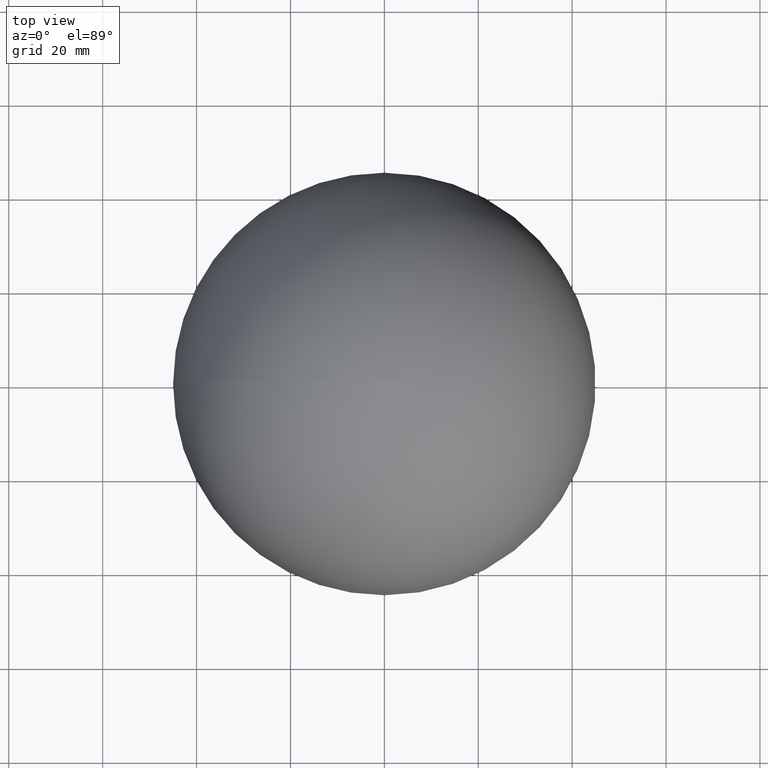
[diagram: clean part render]
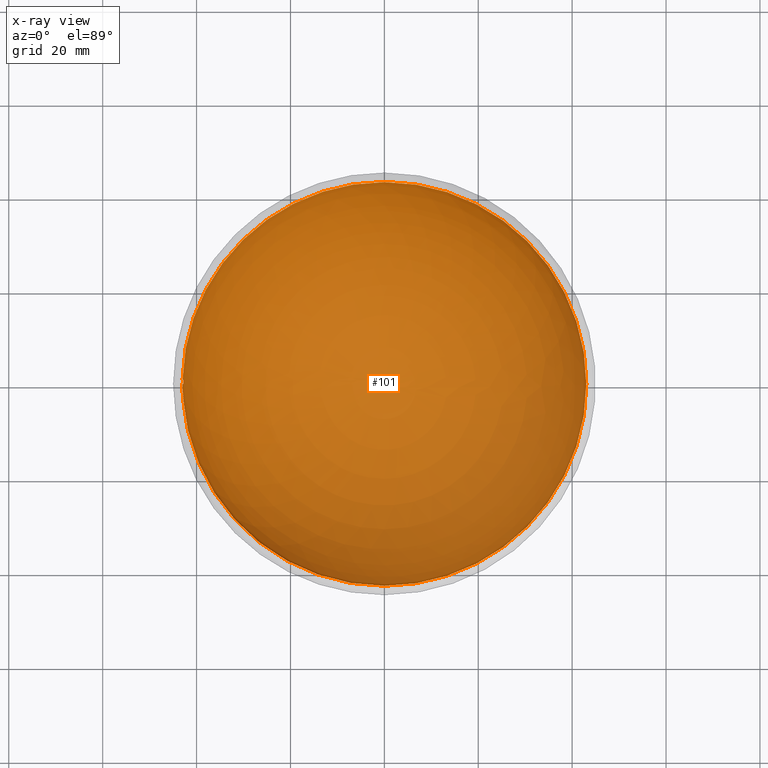
[diagram: x-ray — body ghosted, one internal face saturated and labeled with its STEP entity id]
A machine part, top view, then the same camera in x-ray: the body is ghosted and one INTERNAL B-rep face — a face not visible from any outside direction — is saturated and labeled: STEP entity #101.
In plain terms, the highlighted spherical surface has radius 43 mm.
Its self-contained STEP definition (entity closure, byte-faithful):
#6 = CARTESIAN_POINT ( 'NONE',  ( -42.85011587801609800, 0.0000000000000000000, -3.587139423076925100 ) ) ;
#8 = CARTESIAN_POINT ( 'NONE',  ( 7.898971854500675800E-015, 43.00000000000000000, 0.0000000000000000000 ) ) ;
#13 = AXIS2_PLACEMENT_3D ( 'NONE', #1442, #1549, #8004 ) ;
#16 = CARTESIAN_POINT ( 'NONE',  ( -42.85999016275602700, -3.204861111111111600, -1.322916666666668700 ) ) ;
#17 = CARTESIAN_POINT ( 'NONE',  ( -42.98530460740385500, 0.9810013101409325000, -0.5494870103403468600 ) ) ;
#20 = DIRECTION ( 'NONE',  ( 0.0000000000000000000, 0.0000000000000000000, -1.000000000000000000 ) ) ;
#21 = EDGE_CURVE ( 'NONE', #105, #3318, #7007, .T. ) ;
#35 = CARTESIAN_POINT ( 'NONE',  ( -42.94915218230967500, 0.8473705349577791400, -1.911471543234524000 ) ) ;
#45 = CARTESIAN_POINT ( 'NONE',  ( -42.98488647640368800, 0.9687805871519080700, -0.6014237449337672700 ) ) ;
#54 = VERTEX_POINT ( 'NONE', #6338 ) ;
#60 = CARTESIAN_POINT ( 'NONE',  ( -42.87920568568987500, -2.424679487179487700, -2.120058760683762900 ) ) ;
#78 = VERTEX_POINT ( 'NONE', #1964 ) ;
#101 = ADVANCED_FACE ( 'NONE', ( #8617, #2748, #4907, #6065, #3789, #4330, #2166 ), #1361, .F. ) ;
#105 = VERTEX_POINT ( 'NONE', #484 ) ;
#122 = CIRCLE ( 'NONE', #1661, 42.85988905179249300 ) ;
#138 = B_SPLINE_CURVE_WITH_KNOTS ( 'NONE', 3,
 ( #961, #1631, #8189, #3101, #5331, #8287, #2368, #8981, #2402, #7442 ),
 .UNSPECIFIED., .F., .F.,
 ( 4, 2, 2, 2, 4 ),
 ( 0.0000000000000000000, 0.0001113091687494933800, 0.0002226183374989867700, 0.0003339275062484801200, 0.0004452366749979735400 ),
 .UNSPECIFIED. ) ;
#156 = CARTESIAN_POINT ( 'NONE',  ( -42.88788229839449400, -3.069177350427351000, -0.4579326923076936800 ) ) ;
#158 = EDGE_CURVE ( 'NONE', #5478, #7719, #8031, .T. ) ;
#165 = CARTESIAN_POINT ( 'NONE',  ( -42.83582045628951800, -1.881944444444444900, -3.248195028712606900 ) ) ;
#180 = CARTESIAN_POINT ( 'NONE',  ( -42.97006923374729600, 0.9230980145723386400, -1.313557390112109100 ) ) ;
#182 = ORIENTED_EDGE ( 'NONE', *, *, #2218, .T. ) ;
#188 = B_SPLINE_CURVE_WITH_KNOTS ( 'NONE', 3,
 ( #8284, #8972, #6690, #5224, #2332, #822, #891, #6798 ),
 .UNSPECIFIED., .F., .F.,
 ( 4, 2, 2, 4 ),
 ( 0.0000000000000000000, 0.0001107360831883818600, 0.0002214721663767637200, 0.0004429443327535274400 ),
 .UNSPECIFIED. ) ;
#198 = CIRCLE ( 'NONE', #2662, 42.98913119190250100 ) ;
#202 = DIRECTION ( 'NONE',  ( 0.0000000000000000000, 1.000000000000000000, 0.0000000000000000000 ) ) ;
#212 = EDGE_CURVE ( 'NONE', #6497, #3053, #8391, .T. ) ;
#221 = DIRECTION ( 'NONE',  ( -1.000000000000000000, 1.127986593019158900E-013, 0.0000000000000000000 ) ) ;
#222 = CIRCLE ( 'NONE', #8439, 43.00000000000000000 ) ;
#236 = CARTESIAN_POINT ( 'NONE',  ( -42.99056287910043000, 0.5637206205348365100, -0.7037654029696439600 ) ) ;
#247 = CARTESIAN_POINT ( 'NONE',  ( -42.97396322900987500, -0.01515455758191483700, -1.497560616642989100 ) ) ;
#252 = DIRECTION ( 'NONE',  ( 0.0000000000000000000, 1.000000000000000000, 0.0000000000000000000 ) ) ;
#265 = EDGE_CURVE ( 'NONE', #3444, #3839, #6900, .T. ) ;
#274 = ORIENTED_EDGE ( 'NONE', *, *, #757, .F. ) ;
#281 = CARTESIAN_POINT ( 'NONE',  ( -42.80568858291688600, 0.8623376128063866600, -3.991267931804265400 ) ) ;
#285 = CIRCLE ( 'NONE', #4862, 43.00000000000000000 ) ;
#288 = CARTESIAN_POINT ( 'NONE',  ( -42.95745828246611400, -1.881944444444444900, -0.3392094017094030600 ) ) ;
#293 = ORIENTED_EDGE ( 'NONE', *, *, #9090, .F. ) ;
#298 = VERTEX_POINT ( 'NONE', #6049 ) ;
#301 = CARTESIAN_POINT ( 'NONE',  ( -42.82191868874332400, -3.204861111111111600, -2.238782051282053300 ) ) ;
#312 = CARTESIAN_POINT ( 'NONE',  ( -42.98973693354120900, 0.9394244966588584100, -4.585481046113408900E-012 ) ) ;
#313 = CARTESIAN_POINT ( 'NONE',  ( -42.99423893723701400, 0.0000000000000000000, -0.7038595085470088500 ) ) ;
#316 = CARTESIAN_POINT ( 'NONE',  ( -42.79850222470419400, 0.8361545826399472400, -4.073068602654836400 ) ) ;
#329 = ORIENTED_EDGE ( 'NONE', *, *, #3387, .F. ) ;
#332 = VERTEX_POINT ( 'NONE', #1805 ) ;
#335 = CARTESIAN_POINT ( 'NONE',  ( -42.98826568697673200, 0.8638441907486571500, -0.5141496457799705800 ) ) ;
#355 = CARTESIAN_POINT ( 'NONE',  ( -42.79096283588909700, 0.7026307667598392600, -4.176199842763196600 ) ) ;
#361 = EDGE_CURVE ( 'NONE', #7127, #8794, #5014, .T. ) ;
#362 = ORIENTED_EDGE ( 'NONE', *, *, #6275, .F. ) ;
#373 = VERTEX_POINT ( 'NONE', #4553 ) ;
#381 = CARTESIAN_POINT ( 'NONE',  ( -42.77995559368572000, 0.4937086838942307800, -4.316439636752138900 ) ) ;
#387 = CARTESIAN_POINT ( 'NONE',  ( -42.94977693722679400, 0.0000000000000000000, -2.077657585470085200 ) ) ;
#441 = CARTESIAN_POINT ( 'NONE',  ( -42.84037041445049700, 0.8206261816564616200, -3.609785648084304500 ) ) ;
#443 = CARTESIAN_POINT ( 'NONE',  ( 0.0000000000000000000, 0.0000000000000000000, -2.467748397435897400 ) ) ;
#461 = EDGE_CURVE ( 'NONE', #6306, #9178, #1043, .T. ) ;
#462 = DIRECTION ( 'NONE',  ( -0.0000000000000000000, -0.6928993320646521500, 0.7210343373407114300 ) ) ;
#476 = EDGE_CURVE ( 'NONE', #7412, #3444, #4801, .T. ) ;
#479 = B_SPLINE_CURVE_WITH_KNOTS ( 'NONE', 3,
 ( #6891, #6824, #7631, #7570, #3902, #4624, #9169, #1076, #247, #5358 ),
 .UNSPECIFIED., .F., .F.,
 ( 4, 2, 2, 2, 4 ),
 ( 0.0000000000000000000, 0.0001968517590730460100, 0.0003937035181460920300, 0.0005905552772191380400, 0.0007874070362921840500 ),
 .UNSPECIFIED. ) ;
#484 = CARTESIAN_POINT ( 'NONE',  ( -42.93892093566651600, -2.017628205128205700, -1.085470085470086900 ) ) ;
#485 = ORIENTED_EDGE ( 'NONE', *, *, #3149, .F. ) ;
#496 = CARTESIAN_POINT ( 'NONE',  ( -42.78714060409252800, 0.9184980458714917500, -4.173765303390934100 ) ) ;
#497 = CIRCLE ( 'NONE', #5307, 42.93579021105173900 ) ;
#531 = CARTESIAN_POINT ( 'NONE',  ( -42.84285650138072300, 0.6450577972953568400, -3.615931510808029000 ) ) ;
#534 = CARTESIAN_POINT ( 'NONE',  ( -42.83854596956508900, -2.566458416800213800, -2.696714743589743600 ) ) ;
#537 = CIRCLE ( 'NONE', #8699, 42.88040187846293300 ) ;
#550 = DIRECTION ( 'NONE',  ( -0.0000000000000000000, -0.0000000000000000000, -1.000000000000000000 ) ) ;
#551 = CARTESIAN_POINT ( 'NONE',  ( -42.96014868526087600, 0.9837072649572650200, -1.567783453525640700 ) ) ;
#554 = CARTESIAN_POINT ( 'NONE',  ( -42.88645959140896500, 0.5281845894271438600, -3.077978611932194600 ) ) ;
#561 = CARTESIAN_POINT ( 'NONE',  ( -42.83381065737119500, 0.7688137147594531500, -3.697972033543191400 ) ) ;
#564 = CARTESIAN_POINT ( 'NONE',  ( -42.99072556221113900, 0.8914709118378099100, -0.06637391264463175800 ) ) ;
#586 = CARTESIAN_POINT ( 'NONE',  ( -42.88609085525044400, 0.5648575666616571000, -3.076385392728087500 ) ) ;
#589 = CARTESIAN_POINT ( 'NONE',  ( 0.0000000000000000000, -3.204861111111111600, 0.0000000000000000000 ) ) ;
#593 = CARTESIAN_POINT ( 'NONE',  ( -42.81436595932917300, 0.8642762626315199100, -3.896731690483592000 ) ) ;
#620 = DIRECTION ( 'NONE',  ( -0.0000000000000000000, -0.0000000000000000000, 1.000000000000000000 ) ) ;
#632 = DIRECTION ( 'NONE',  ( 0.0000000000000000000, 0.0000000000000000000, 1.000000000000000000 ) ) ;
#634 = CARTESIAN_POINT ( 'NONE',  ( 0.0000000000000000000, 0.1939288023721398300, -0.2017739372885175900 ) ) ;
#640 = AXIS2_PLACEMENT_3D ( 'NONE', #5423, #1729, #9042 ) ;
#650 = CIRCLE ( 'NONE', #13, 43.00000000000000000 ) ;
#669 = CIRCLE ( 'NONE', #5280, 42.99756153143240300 ) ;
#670 = DIRECTION ( 'NONE',  ( 0.0000000000000000000, 0.0000000000000000000, -1.000000000000000000 ) ) ;
#673 = EDGE_LOOP ( 'NONE', ( #5387, #1687, #754, #7004, #4797, #2412, #5237, #3042, #3186, #4209, #4529, #7666, #8378, #2918 ) ) ;
#683 = DIRECTION ( 'NONE',  ( -0.0000000000000000000, -0.0000000000000000000, -1.000000000000000000 ) ) ;
#692 = AXIS2_PLACEMENT_3D ( 'NONE', #5907, #2968, #2225 ) ;
#702 = ORIENTED_EDGE ( 'NONE', *, *, #6104, .F. ) ;
#717 = CIRCLE ( 'NONE', #4700, 42.97964508337702900 ) ;
#723 = ORIENTED_EDGE ( 'NONE', *, *, #2237, .F. ) ;
#730 = DIRECTION ( 'NONE',  ( 0.0000000000000000000, 0.0000000000000000000, -1.000000000000000000 ) ) ;
#731 = ORIENTED_EDGE ( 'NONE', *, *, #6921, .F. ) ;
#734 = CARTESIAN_POINT ( 'NONE',  ( -42.89904539224467300, 0.8649839743589744500, -2.814908019497862800 ) ) ;
#747 = CIRCLE ( 'NONE', #1557, 42.93158428691457800 ) ;
#754 = ORIENTED_EDGE ( 'NONE', *, *, #9006, .F. ) ;
#757 = EDGE_CURVE ( 'NONE', #7168, #1351, #1721, .T. ) ;
#759 = B_SPLINE_CURVE_WITH_KNOTS ( 'NONE', 3,
 ( #7430, #8141, #2331, #180, #8245, #5290, #3771, #3021, #8970, #9011 ),
 .UNSPECIFIED., .F., .F.,
 ( 4, 2, 2, 2, 4 ),
 ( 0.0000000000000000000, 0.0001962865373067315800, 0.0003925730746134631500, 0.0005888596119201947000, 0.0007851461492269263000 ),
 .UNSPECIFIED. ) ;
#774 = CARTESIAN_POINT ( 'NONE',  ( -42.98933771109197700, 0.8613570489234695400, -0.4191255837135132200 ) ) ;
#776 = DIRECTION ( 'NONE',  ( -0.0000000000000000000, -0.0000000000000000000, 1.000000000000000000 ) ) ;
#777 = VERTEX_POINT ( 'NONE', #60 ) ;
#788 = DIRECTION ( 'NONE',  ( -1.000000000000000000, 1.216804434989171600E-013, 0.0000000000000000000 ) ) ;
#790 = CARTESIAN_POINT ( 'NONE',  ( -42.89532877502739400, 0.8623313929717479900, -2.871928417917941200 ) ) ;
#796 = CARTESIAN_POINT ( 'NONE',  ( -42.89131575929047100, 0.9809408505337238200, -2.893720522669459800 ) ) ;
#805 = CIRCLE ( 'NONE', #8503, 42.99969812576032500 ) ;
#811 = CARTESIAN_POINT ( 'NONE',  ( -42.95153613675166300, 0.9193845081616616200, -1.822553351662575100 ) ) ;
#822 = CARTESIAN_POINT ( 'NONE',  ( -42.99054589333491800, 0.8763723846509080500, -0.2245677962808454700 ) ) ;
#843 = CARTESIAN_POINT ( 'NONE',  ( 0.0000000000000000000, 0.0000000000000000000, 0.0000000000000000000 ) ) ;
#876 = CIRCLE ( 'NONE', #2171, 42.88040187846293300 ) ;
#878 = CARTESIAN_POINT ( 'NONE',  ( -42.84425336093676900, 0.6089868790064102400, -3.605424929887822500 ) ) ;
#882 = CARTESIAN_POINT ( 'NONE',  ( -42.98867910088117100, 0.8649839743589744500, -0.4746281550480772000 ) ) ;
#886 = DIRECTION ( 'NONE',  ( 1.000000000000000000, 0.0000000000000000000, 0.0000000000000000000 ) ) ;
#887 = EDGE_CURVE ( 'NONE', #7316, #4268, #9328, .T. ) ;
#891 = CARTESIAN_POINT ( 'NONE',  ( -42.99196175443335500, 0.8157760831184006600, -0.1770651281898813200 ) ) ;
#909 = ORIENTED_EDGE ( 'NONE', *, *, #3924, .F. ) ;
#922 = VERTEX_POINT ( 'NONE', #7949 ) ;
#938 = CARTESIAN_POINT ( 'NONE',  ( -42.79140635705217500, 0.5281831816969980700, -4.197369657057155500 ) ) ;
#958 = CARTESIAN_POINT ( 'NONE',  ( -42.87906018373396200, -3.204861111111111600, -0.3392094017094030600 ) ) ;
#961 = CARTESIAN_POINT ( 'NONE',  ( -42.92375531577046400, 0.6089868790064102400, -2.486033904246794700 ) ) ;
#965 = AXIS2_PLACEMENT_3D ( 'NONE', #8763, #4359, #8009 ) ;
#984 = EDGE_LOOP ( 'NONE', ( #5821, #3510, #6866, #6699, #6083, #9123, #1340, #1125, #4354, #9542, #6372, #8520, #6243, #7105 ) ) ;
#1001 = DIRECTION ( 'NONE',  ( 0.0000000000000000000, 0.0000000000000000000, -1.000000000000000000 ) ) ;
#1018 = B_SPLINE_CURVE_WITH_KNOTS ( 'NONE', 3,
 ( #8298, #335, #1068, #8390, #8357, #4615, #9158, #3947, #236, #4645 ),
 .UNSPECIFIED., .F., .F.,
 ( 4, 2, 2, 2, 4 ),
 ( 0.0000000000000000000, 0.0001174749728351161000, 0.0002349499456702322000, 0.0003524249185053483300, 0.0004698998913404644000 ),
 .UNSPECIFIED. ) ;
#1028 = CARTESIAN_POINT ( 'NONE',  ( 0.0000000000000000000, -3.069177350427351000, 0.0000000000000000000 ) ) ;
#1041 = EDGE_LOOP ( 'NONE', ( #293, #9400, #5709, #3238, #7992, #3502, #6828, #7807, #3133, #1465, #9249, #4639 ) ) ;
#1043 = CIRCLE ( 'NONE', #8664, 42.99423893723701400 ) ;
#1066 = EDGE_CURVE ( 'NONE', #4656, #1843, #4450, .T. ) ;
#1068 = CARTESIAN_POINT ( 'NONE',  ( -42.98790029602574900, 0.8573782255144740700, -0.5539690666514461800 ) ) ;
#1076 = CARTESIAN_POINT ( 'NONE',  ( -42.97623681792855900, -0.005250888672433563300, -1.430855993031223200 ) ) ;
#1085 = CARTESIAN_POINT ( 'NONE',  ( -42.83228293339554000, 0.8970970700862697100, -3.686743409804554600 ) ) ;
#1120 = CARTESIAN_POINT ( 'NONE',  ( -42.79608755301234200, 0.9684128503727212900, -4.069139820532635500 ) ) ;
#1125 = ORIENTED_EDGE ( 'NONE', *, *, #7724, .F. ) ;
#1127 = ORIENTED_EDGE ( 'NONE', *, *, #3529, .F. ) ;
#1129 = CIRCLE ( 'NONE', #3140, 42.92370603802741200 ) ;
#1150 = CARTESIAN_POINT ( 'NONE',  ( 0.0000000000000000000, 0.0000000000000000000, -1.085470085470086900 ) ) ;
#1153 = CARTESIAN_POINT ( 'NONE',  ( -42.77871833027328600, 0.6096415174370865000, -4.314273846626529800 ) ) ;
#1164 = CARTESIAN_POINT ( 'NONE',  ( -42.90645214835727500, -1.881944444444444900, -2.120058760683762900 ) ) ;
#1177 = CARTESIAN_POINT ( 'NONE',  ( -42.92181688280560800, 0.7923719618055555800, -2.467748397435897400 ) ) ;
#1184 = CARTESIAN_POINT ( 'NONE',  ( -42.92770709411260600, 0.3495446881677350400, -2.467748397435897400 ) ) ;
#1189 = AXIS2_PLACEMENT_3D ( 'NONE', #8835, #7364, #20 ) ;
#1190 = VERTEX_POINT ( 'NONE', #2216 ) ;
#1216 = CIRCLE ( 'NONE', #9341, 42.95879752865558000 ) ;
#1218 = VERTEX_POINT ( 'NONE', #6916 ) ;
#1229 = AXIS2_PLACEMENT_3D ( 'NONE', #1150, #6264, #1886 ) ;
#1245 = AXIS2_PLACEMENT_3D ( 'NONE', #7670, #6130, #8340 ) ;
#1264 = CARTESIAN_POINT ( 'NONE',  ( -42.98973693354120900, 0.9394244966588584100, -4.585481046113408900E-012 ) ) ;
#1305 = VERTEX_POINT ( 'NONE', #8637 ) ;
#1311 = CARTESIAN_POINT ( 'NONE',  ( -42.88688589954939100, 0.4914595485737403600, -3.078121656582129900 ) ) ;
#1322 = DIRECTION ( 'NONE',  ( 1.000000000000000000, 0.0000000000000000000, 0.0000000000000000000 ) ) ;
#1329 = ORIENTED_EDGE ( 'NONE', *, *, #5234, .F. ) ;
#1340 = ORIENTED_EDGE ( 'NONE', *, *, #476, .F. ) ;
#1351 = VERTEX_POINT ( 'NONE', #5134 ) ;
#1357 = ORIENTED_EDGE ( 'NONE', *, *, #887, .F. ) ;
#1358 = VERTEX_POINT ( 'NONE', #6557 ) ;
#1361 = SPHERICAL_SURFACE ( 'NONE', #6823, 43.00000000000000000 ) ;
#1376 = CARTESIAN_POINT ( 'NONE',  ( 0.0000000000000000000, -3.204861111111111600, 0.0000000000000000000 ) ) ;
#1398 = B_SPLINE_CURVE_WITH_KNOTS ( 'NONE', 3,
 ( #5704, #6425, #6328, #4231, #2703, #4139, #2768, #1952, #1982, #7946 ),
 .UNSPECIFIED., .F., .F.,
 ( 4, 2, 2, 2, 4 ),
 ( 0.0000000000000000000, 0.0001130670772918105500, 0.0002261341545836210900, 0.0003392012318754316400, 0.0004522683091672421800 ),
 .UNSPECIFIED. ) ;
#1400 = DIRECTION ( 'NONE',  ( -0.0000000000000000000, -0.0000000000000000000, -1.000000000000000000 ) ) ;
#1426 = EDGE_CURVE ( 'NONE', #2058, #2621, #1851, .T. ) ;
#1442 = CARTESIAN_POINT ( 'NONE',  ( 0.0000000000000000000, 0.0000000000000000000, 0.0000000000000000000 ) ) ;
#1453 = ORIENTED_EDGE ( 'NONE', *, *, #2577, .F. ) ;
#1464 = CARTESIAN_POINT ( 'NONE',  ( -42.83938256565585300, -2.475560897435897800, -2.767471704727564800 ) ) ;
#1465 = ORIENTED_EDGE ( 'NONE', *, *, #4175, .F. ) ;
#1471 = CARTESIAN_POINT ( 'NONE',  ( -42.94812967144933700, 0.7878668369391025300, -1.958934294871794300 ) ) ;
#1473 = CIRCLE ( 'NONE', #1972, 43.00000000000000000 ) ;
#1474 = CARTESIAN_POINT ( 'NONE',  ( -42.99557259400410900, 0.5945480115652169700, -0.1739348730879533800 ) ) ;
#1496 = CARTESIAN_POINT ( 'NONE',  ( -42.89512576112944200, 0.9837072649572650200, -2.835578592414529800 ) ) ;
#1507 = CARTESIAN_POINT ( 'NONE',  ( -42.99057201502432000, 0.8339216382343416200, -0.3406579539863390800 ) ) ;
#1523 = AXIS2_PLACEMENT_3D ( 'NONE', #634, #2141, #5718 ) ;
#1549 = DIRECTION ( 'NONE',  ( -0.0000000000000000000, -1.000000000000000000, 0.0000000000000000000 ) ) ;
#1557 = AXIS2_PLACEMENT_3D ( 'NONE', #3736, #7435, #1654 ) ;
#1561 = CARTESIAN_POINT ( 'NONE',  ( -42.94508167184658700, -1.881944444444444900, -1.085470085470086900 ) ) ;
#1569 = DIRECTION ( 'NONE',  ( 0.0000000000000000000, 0.6744544184908600700, -0.7383164886267648000 ) ) ;
#1617 = DIRECTION ( 'NONE',  ( -0.0000000000000000000, -0.0000000000000000000, -1.000000000000000000 ) ) ;
#1628 = EDGE_CURVE ( 'NONE', #1305, #332, #122, .T. ) ;
#1631 = CARTESIAN_POINT ( 'NONE',  ( -42.92263624329280700, 0.6450190614070535600, -2.496529202345155100 ) ) ;
#1649 = VERTEX_POINT ( 'NONE', #5225 ) ;
#1654 = DIRECTION ( 'NONE',  ( 0.0000000000000000000, 0.0000000000000000000, -1.000000000000000000 ) ) ;
#1658 = CARTESIAN_POINT ( 'NONE',  ( -42.79067264596387300, 0.6747087005876067900, -4.183670956864318700 ) ) ;
#1661 = AXIS2_PLACEMENT_3D ( 'NONE', #8010, #5124, #788 ) ;
#1687 = ORIENTED_EDGE ( 'NONE', *, *, #2072, .F. ) ;
#1690 = DIRECTION ( 'NONE',  ( 1.224646799147353200E-016, -1.499759782661928200E-032, -1.000000000000000000 ) ) ;
#1700 = VERTEX_POINT ( 'NONE', #2193 ) ;
#1701 = CARTESIAN_POINT ( 'NONE',  ( -42.79219996151443400, 0.4547526041666666900, -4.197716346153848500 ) ) ;
#1703 = CIRCLE ( 'NONE', #9388, 43.00000000000000000 ) ;
#1717 = ORIENTED_EDGE ( 'NONE', *, *, #9107, .F. ) ;
#1721 = CIRCLE ( 'NONE', #8113, 42.85069372142994800 ) ;
#1729 = DIRECTION ( 'NONE',  ( -0.0000000000000000000, -0.0000000000000000000, 1.000000000000000000 ) ) ;
#1737 = ORIENTED_EDGE ( 'NONE', *, *, #3887, .F. ) ;
#1776 = EDGE_CURVE ( 'NONE', #1190, #7316, #6067, .T. ) ;
#1781 = EDGE_LOOP ( 'NONE', ( #2023, #7022, #7562, #274, #7972, #1453, #1357, #2253, #8477, #4444, #4885 ) ) ;
#1786 = DIRECTION ( 'NONE',  ( 1.000000000000000000, 0.0000000000000000000, 0.0000000000000000000 ) ) ;
#1805 = CARTESIAN_POINT ( 'NONE',  ( -42.85988905179249300, 0.0000000000000000000, -3.468416132478634200 ) ) ;
#1821 = ORIENTED_EDGE ( 'NONE', *, *, #2441, .F. ) ;
#1822 = CARTESIAN_POINT ( 'NONE',  ( 0.0000000000000000000, 0.0000000000000000000, -1.441639957264959200 ) ) ;
#1834 = EDGE_CURVE ( 'NONE', #8508, #54, #6347, .T. ) ;
#1840 = EDGE_CURVE ( 'NONE', #3525, #373, #7812, .T. ) ;
#1843 = VERTEX_POINT ( 'NONE', #4079 ) ;
#1847 = DIRECTION ( 'NONE',  ( -0.0000000000000000000, -1.000000000000000000, 0.0000000000000000000 ) ) ;
#1851 = CIRCLE ( 'NONE', #5747, 42.85011587801609800 ) ;
#1865 = CARTESIAN_POINT ( 'NONE',  ( -42.81973409399214600, 0.9635268949329784900, -3.813564921927715500 ) ) ;
#1868 = CARTESIAN_POINT ( 'NONE',  ( 0.0000000000000000000, 0.0000000000000000000, -0.4579326923076936800 ) ) ;
#1871 = DIRECTION ( 'NONE',  ( -0.0000000000000000000, -1.000000000000000000, 0.0000000000000000000 ) ) ;
#1880 = CARTESIAN_POINT ( 'NONE',  ( -42.99716900871474900, 0.4915886251335469500, -0.04240117521367545200 ) ) ;
#1886 = DIRECTION ( 'NONE',  ( 1.000000000000000000, 0.0000000000000000000, 0.0000000000000000000 ) ) ;
#1887 = CARTESIAN_POINT ( 'NONE',  ( -42.87814282258082700, 0.4937086838942307800, -3.197048611111110700 ) ) ;
#1889 = AXIS2_PLACEMENT_3D ( 'NONE', #443, #5027, #1322 ) ;
#1890 = CARTESIAN_POINT ( 'NONE',  ( -42.81310588550427800, 0.9799517445493776100, -3.883162163258506700 ) ) ;
#1906 = B_SPLINE_CURVE_WITH_KNOTS ( 'NONE', 3,
 ( #7580, #5989, #8261, #6015, #3843, #4605, #5302, #938, #6047, #1701 ),
 .UNSPECIFIED., .F., .F.,
 ( 4, 3, 3, 4 ),
 ( 0.0000000000000000000, 5.535280343987904100E-005, 0.0001105442384984598200, 0.0002205380935342410600 ),
 .UNSPECIFIED. ) ;
#1907 = VERTEX_POINT ( 'NONE', #1940 ) ;
#1937 = CIRCLE ( 'NONE', #1229, 42.98629728987540200 ) ;
#1938 = EDGE_CURVE ( 'NONE', #2048, #4094, #9117, .T. ) ;
#1940 = CARTESIAN_POINT ( 'NONE',  ( -42.99322440157995800, 0.7502357939369659300, -0.1407189002403848300 ) ) ;
#1952 = CARTESIAN_POINT ( 'NONE',  ( -42.95750428147043500, 0.1114615901331858100, -1.908351915939391100 ) ) ;
#1958 = CARTESIAN_POINT ( 'NONE',  ( -42.92375531577046400, 0.6089868790064102400, -2.486033904246794700 ) ) ;
#1964 = CARTESIAN_POINT ( 'NONE',  ( -42.90737236907042300, -2.424679487179487700, -1.441639957264959200 ) ) ;
#1965 = CARTESIAN_POINT ( 'NONE',  ( -42.89512576112944200, 0.9837072649572650200, -2.835578592414529800 ) ) ;
#1972 = AXIS2_PLACEMENT_3D ( 'NONE', #5420, #1690, #2527 ) ;
#1974 = CARTESIAN_POINT ( 'NONE',  ( -42.88536996077395700, 0.6747087005876067900, -3.064279931223290500 ) ) ;
#1981 = CARTESIAN_POINT ( 'NONE',  ( -42.77861946006503000, 0.7244116910159330600, -4.297476978087596300 ) ) ;
#1982 = CARTESIAN_POINT ( 'NONE',  ( -42.95627906913762900, 0.1389850863244410700, -1.933958178477500400 ) ) ;
#2000 = EDGE_CURVE ( 'NONE', #1218, #6734, #805, .T. ) ;
#2003 = B_SPLINE_CURVE_WITH_KNOTS ( 'NONE', 3,
 ( #4903, #3449, #7881, #564, #4930, #1264 ),
 .UNSPECIFIED., .F., .F.,
 ( 4, 2, 4 ),
 ( 0.0000000000000000000, 0.0001197124863553871900, 0.0002394249727107743800 ),
 .UNSPECIFIED. ) ;
#2023 = ORIENTED_EDGE ( 'NONE', *, *, #1840, .F. ) ;
#2040 = DIRECTION ( 'NONE',  ( -1.000000000000000000, -1.776356839400250500E-014, 0.0000000000000000000 ) ) ;
#2041 = VERTEX_POINT ( 'NONE', #6504 ) ;
#2048 = VERTEX_POINT ( 'NONE', #4312 ) ;
#2057 = CARTESIAN_POINT ( 'NONE',  ( 0.0000000000000000000, -2.560363247863248300, 0.0000000000000000000 ) ) ;
#2058 = VERTEX_POINT ( 'NONE', #6 ) ;
#2068 = CARTESIAN_POINT ( 'NONE',  ( -42.81089924011782700, 0.8649839743589744500, -3.934299045138890600 ) ) ;
#2069 = DIRECTION ( 'NONE',  ( -0.0000000000000000000, -0.0000000000000000000, -1.000000000000000000 ) ) ;
#2072 = EDGE_CURVE ( 'NONE', #2041, #4843, #4453, .T. ) ;
#2136 = CARTESIAN_POINT ( 'NONE',  ( -42.88157704345138700, 0.9183704952746705200, -3.054553370376030600 ) ) ;
#2141 = DIRECTION ( 'NONE',  ( -0.0000000000000000000, 0.6929516293246059700, -0.7209840770893445300 ) ) ;
#2148 = CARTESIAN_POINT ( 'NONE',  ( 0.0000000000000000000, -2.017628205128205700, 0.0000000000000000000 ) ) ;
#2154 = VERTEX_POINT ( 'NONE', #5931 ) ;
#2166 = FACE_BOUND ( 'NONE', #1781, .T. ) ;
#2171 = AXIS2_PLACEMENT_3D ( 'NONE', #1376, #8618, #6503 ) ;
#2174 = B_SPLINE_CURVE_WITH_KNOTS ( 'NONE', 3,
 ( #8892, #6641, #4451, #878 ),
 .UNSPECIFIED., .F., .F.,
 ( 4, 4 ),
 ( 0.0000000000000000000, 0.0002607893495849513600 ),
 .UNSPECIFIED. ) ;
#2193 = CARTESIAN_POINT ( 'NONE',  ( -42.79067264596387300, 0.6747087005876067900, -4.183670956864318700 ) ) ;
#2196 = VERTEX_POINT ( 'NONE', #4486 ) ;
#2211 = CIRCLE ( 'NONE', #2566, 42.92370603802741200 ) ;
#2216 = CARTESIAN_POINT ( 'NONE',  ( -42.75244316466066900, -3.204861111111111600, -3.310206747462607300 ) ) ;
#2218 = EDGE_CURVE ( 'NONE', #9168, #2744, #7108, .T. ) ;
#2225 = DIRECTION ( 'NONE',  ( -1.000000000000000000, -4.307665335545606900E-013, 0.0000000000000000000 ) ) ;
#2237 = EDGE_CURVE ( 'NONE', #1907, #2388, #2003, .T. ) ;
#2253 = ORIENTED_EDGE ( 'NONE', *, *, #1776, .F. ) ;
#2255 = CIRCLE ( 'NONE', #7202, 42.99967909125587800 ) ;
#2260 = VERTEX_POINT ( 'NONE', #4201 ) ;
#2262 = EDGE_CURVE ( 'NONE', #777, #78, #3322, .T. ) ;
#2264 = CARTESIAN_POINT ( 'NONE',  ( -42.88561830306299800, 0.7301756711725239100, -3.048182152903419400 ) ) ;
#2295 = CARTESIAN_POINT ( 'NONE',  ( 0.0000000000000000000, 0.0000000000000000000, -2.238782051282053300 ) ) ;
#2296 = CARTESIAN_POINT ( 'NONE',  ( -42.98894210711208100, 0.5236545138888890600, -0.8225827991452993000 ) ) ;
#2302 = EDGE_CURVE ( 'NONE', #3766, #7166, #1398, .T. ) ;
#2310 = AXIS2_PLACEMENT_3D ( 'NONE', #2420, #2513, #9159 ) ;
#2318 = EDGE_CURVE ( 'NONE', #9390, #2048, #7549, .T. ) ;
#2325 = CARTESIAN_POINT ( 'NONE',  ( -42.99698523367702300, 0.4855038755433303500, -0.1629422173709453000 ) ) ;
#2331 = CARTESIAN_POINT ( 'NONE',  ( -42.96504570712483000, 0.9725724546065053200, -1.436434168306556200 ) ) ;
#2332 = CARTESIAN_POINT ( 'NONE',  ( -42.98860433017148400, 0.9386009707679381400, -0.3167014782011111600 ) ) ;
#2368 = CARTESIAN_POINT ( 'NONE',  ( -42.90896271906287000, 0.8339626349004937200, -2.669608541150927400 ) ) ;
#2388 = VERTEX_POINT ( 'NONE', #312 ) ;
#2392 = AXIS2_PLACEMENT_3D ( 'NONE', #4514, #3138, #5342 ) ;
#2399 = CARTESIAN_POINT ( 'NONE',  ( 0.0000000000000000000, 0.0000000000000000000, -3.078325320512820300 ) ) ;
#2402 = CARTESIAN_POINT ( 'NONE',  ( -42.90152657714207900, 0.8642757326079859600, -2.777312529683428500 ) ) ;
#2412 = ORIENTED_EDGE ( 'NONE', *, *, #7001, .F. ) ;
#2420 = CARTESIAN_POINT ( 'NONE',  ( 0.0000000000000000000, -1.881944444444444900, 0.0000000000000000000 ) ) ;
#2424 = CARTESIAN_POINT ( 'NONE',  ( 0.0000000000000000000, -2.763888888888889300, 0.0000000000000000000 ) ) ;
#2441 = EDGE_CURVE ( 'NONE', #4236, #8508, #1473, .T. ) ;
#2459 = CARTESIAN_POINT ( 'NONE',  ( 0.0000000000000000000, 0.0000000000000000000, -2.696714743589743600 ) ) ;
#2460 = VERTEX_POINT ( 'NONE', #4626 ) ;
#2488 = VERTEX_POINT ( 'NONE', #5538 ) ;
#2493 = CARTESIAN_POINT ( 'NONE',  ( -42.80079738239872700, 0.8477467982729806100, -4.046466324639126800 ) ) ;
#2504 = DIRECTION ( 'NONE',  ( 0.0000000000000000000, 0.0000000000000000000, 1.000000000000000000 ) ) ;
#2513 = DIRECTION ( 'NONE',  ( 0.0000000000000000000, 1.000000000000000000, 0.0000000000000000000 ) ) ;
#2527 = DIRECTION ( 'NONE',  ( -1.000000000000000000, 0.0000000000000000000, -1.224646799147353200E-016 ) ) ;
#2534 = DIRECTION ( 'NONE',  ( 0.0000000000000000000, 1.000000000000000000, 0.0000000000000000000 ) ) ;
#2539 = ORIENTED_EDGE ( 'NONE', *, *, #4046, .F. ) ;
#2547 = EDGE_CURVE ( 'NONE', #78, #4109, #9110, .T. ) ;
#2566 = AXIS2_PLACEMENT_3D ( 'NONE', #3275, #1847, #7008 ) ;
#2577 = EDGE_CURVE ( 'NONE', #4268, #8683, #7697, .T. ) ;
#2591 = ORIENTED_EDGE ( 'NONE', *, *, #7962, .F. ) ;
#2592 = CARTESIAN_POINT ( 'NONE',  ( -42.80643100443118200, 0.9837072649572650200, -3.954969618055557100 ) ) ;
#2619 = CARTESIAN_POINT ( 'NONE',  ( -42.83786735516778100, 0.8484795825916937600, -3.632977328351814100 ) ) ;
#2621 = VERTEX_POINT ( 'NONE', #6988 ) ;
#2631 = ORIENTED_EDGE ( 'NONE', *, *, #8241, .F. ) ;
#2645 = DIRECTION ( 'NONE',  ( -0.0000000000000000000, -0.0000000000000000000, 1.000000000000000000 ) ) ;
#2662 = AXIS2_PLACEMENT_3D ( 'NONE', #2816, #7250, #3589 ) ;
#2679 = CARTESIAN_POINT ( 'NONE',  ( -42.99311226228505200, 0.7696089932902189200, -5.372518226197213500E-015 ) ) ;
#2682 = CARTESIAN_POINT ( 'NONE',  ( -42.90471604844786700, 0.9635101734326512200, -2.694118436198524400 ) ) ;
#2690 = CARTESIAN_POINT ( 'NONE',  ( 0.0000000000000000000, 0.1151090138980603600, -0.1197829868165993000 ) ) ;
#2699 = AXIS2_PLACEMENT_3D ( 'NONE', #9079, #252, #5985 ) ;
#2703 = CARTESIAN_POINT ( 'NONE',  ( -42.96441594329762400, 0.01299392190436989500, -1.749341677975410100 ) ) ;
#2715 = CIRCLE ( 'NONE', #8628, 42.91108153157965400 ) ;
#2730 = CARTESIAN_POINT ( 'NONE',  ( -42.88546265461796700, 0.6383485135454528600, -3.070821470895283700 ) ) ;
#2744 = VERTEX_POINT ( 'NONE', #8 ) ;
#2748 = FACE_BOUND ( 'NONE', #1041, .T. ) ;
#2758 = AXIS2_PLACEMENT_3D ( 'NONE', #5790, #8862, #730 ) ;
#2768 = CARTESIAN_POINT ( 'NONE',  ( -42.96015850312388600, 0.06464601116994275800, -1.849866777204804300 ) ) ;
#2783 = DIRECTION ( 'NONE',  ( 0.0000000000000000000, 0.0000000000000000000, 1.000000000000000000 ) ) ;
#2793 = DIRECTION ( 'NONE',  ( 1.000000000000000000, 0.0000000000000000000, 0.0000000000000000000 ) ) ;
#2804 = CIRCLE ( 'NONE', #6981, 42.92913017808481200 ) ;
#2816 = CARTESIAN_POINT ( 'NONE',  ( 0.0000000000000000000, 0.9667467948717949300, 0.0000000000000000000 ) ) ;
#2823 = CARTESIAN_POINT ( 'NONE',  ( -42.77995559368572000, 0.4937086838942307800, -4.316439636752138900 ) ) ;
#2826 = CARTESIAN_POINT ( 'NONE',  ( -42.89718698264683600, 0.8641364511834280800, -2.843490513526932600 ) ) ;
#2832 = CIRCLE ( 'NONE', #4164, 42.99866203711217600 ) ;
#2879 = ORIENTED_EDGE ( 'NONE', *, *, #6491, .F. ) ;
#2918 = ORIENTED_EDGE ( 'NONE', *, *, #1066, .F. ) ;
#2919 = EDGE_CURVE ( 'NONE', #7385, #6306, #1018, .T. ) ;
#2923 = ORIENTED_EDGE ( 'NONE', *, *, #6730, .F. ) ;
#2925 = CARTESIAN_POINT ( 'NONE',  ( 0.0000000000000000000, 0.0000000000000000000, -1.322916666666668700 ) ) ;
#2935 = ORIENTED_EDGE ( 'NONE', *, *, #1834, .F. ) ;
#2939 = DIRECTION ( 'NONE',  ( -0.0000000000000000000, -0.0000000000000000000, -1.000000000000000000 ) ) ;
#2968 = DIRECTION ( 'NONE',  ( -0.0000000000000000000, -0.0000000000000000000, 1.000000000000000000 ) ) ;
#2990 = VERTEX_POINT ( 'NONE', #1184 ) ;
#2992 = DIRECTION ( 'NONE',  ( -0.0000000000000000000, -0.0000000000000000000, -1.000000000000000000 ) ) ;
#2999 = B_SPLINE_CURVE_WITH_KNOTS ( 'NONE', 3,
 ( #9381, #531, #3448, #7914, #561, #3477, #3507, #6477, #593, #2068 ),
 .UNSPECIFIED., .F., .F.,
 ( 4, 2, 2, 2, 4 ),
 ( 0.0000000000000000000, 0.0001114544369544594100, 0.0002229088739089188200, 0.0003343633108633782400, 0.0004458177478178376500 ),
 .UNSPECIFIED. ) ;
#3013 = CARTESIAN_POINT ( 'NONE',  ( -42.95364472829592700, 0.9523556188004813600, -1.754664763099163600 ) ) ;
#3016 = CARTESIAN_POINT ( 'NONE',  ( -42.88967140490924400, 0.0000000000000000000, -3.078325320512820300 ) ) ;
#3021 = CARTESIAN_POINT ( 'NONE',  ( -42.98222362337953200, 0.6187527586011055700, -1.072334876588543400 ) ) ;
#3028 = DIRECTION ( 'NONE',  ( -0.0000000000000000000, -1.000000000000000000, 0.0000000000000000000 ) ) ;
#3042 = ORIENTED_EDGE ( 'NONE', *, *, #5847, .F. ) ;
#3046 = EDGE_CURVE ( 'NONE', #7053, #7434, #9445, .T. ) ;
#3053 = VERTEX_POINT ( 'NONE', #1164 ) ;
#3092 = DIRECTION ( 'NONE',  ( 1.000000000000000000, 0.0000000000000000000, 0.0000000000000000000 ) ) ;
#3101 = CARTESIAN_POINT ( 'NONE',  ( -42.91777253420083600, 0.7415094089890088600, -2.552719039472992600 ) ) ;
#3133 = ORIENTED_EDGE ( 'NONE', *, *, #8161, .F. ) ;
#3138 = DIRECTION ( 'NONE',  ( -0.0000000000000000000, -0.0000000000000000000, -1.000000000000000000 ) ) ;
#3140 = AXIS2_PLACEMENT_3D ( 'NONE', #2057, #7185, #2783 ) ;
#3149 = EDGE_CURVE ( 'NONE', #3426, #9234, #669, .T. ) ;
#3176 = CARTESIAN_POINT ( 'NONE',  ( -42.91785973319266400, -2.424679487179487700, -1.085470085470086900 ) ) ;
#3186 = ORIENTED_EDGE ( 'NONE', *, *, #1938, .F. ) ;
#3219 = CARTESIAN_POINT ( 'NONE',  ( 0.0000000000000000000, 0.0000000000000000000, -0.8225827991452993000 ) ) ;
#3238 = ORIENTED_EDGE ( 'NONE', *, *, #2262, .F. ) ;
#3248 = EDGE_CURVE ( 'NONE', #8854, #7127, #5807, .T. ) ;
#3258 = AXIS2_PLACEMENT_3D ( 'NONE', #843, #632, #5451 ) ;
#3275 = CARTESIAN_POINT ( 'NONE',  ( 0.0000000000000000000, -2.560363247863248300, 0.0000000000000000000 ) ) ;
#3278 = CARTESIAN_POINT ( 'NONE',  ( -42.95739160303328700, 0.9804353980445430500, -1.643995394934507000 ) ) ;
#3290 = DIRECTION ( 'NONE',  ( -1.000000000000000000, 5.266898028821742600E-013, 0.0000000000000000000 ) ) ;
#3302 = DIRECTION ( 'NONE',  ( -0.0000000000000000000, -0.0000000000000000000, -1.000000000000000000 ) ) ;
#3318 = VERTEX_POINT ( 'NONE', #1561 ) ;
#3322 = CIRCLE ( 'NONE', #4726, 42.93158428691457800 ) ;
#3333 = CARTESIAN_POINT ( 'NONE',  ( -42.82932800716623200, 0.9177282903913336300, -3.715874169885216000 ) ) ;
#3341 = EDGE_CURVE ( 'NONE', #5548, #9390, #138, .T. ) ;
#3345 = CARTESIAN_POINT ( 'NONE',  ( 0.0000000000000000000, 0.0000000000000000000, -0.04240117521367545200 ) ) ;
#3353 = CARTESIAN_POINT ( 'NONE',  ( -42.92126323500168200, -2.560363247863248300, -0.4579326923076936800 ) ) ;
#3373 = DIRECTION ( 'NONE',  ( -0.0000000000000000000, -0.0000000000000000000, 1.000000000000000000 ) ) ;
#3386 = CARTESIAN_POINT ( 'NONE',  ( -42.79461622070272100, 0.0000000000000000000, -4.197716346153848500 ) ) ;
#3387 = EDGE_CURVE ( 'NONE', #1358, #5478, #4679, .T. ) ;
#3412 = B_SPLINE_CURVE_WITH_KNOTS ( 'NONE', 3,
 ( #381, #7048, #1153, #1981, #7854, #5523, #496, #8529, #1120, #8555, #7765, #8470 ),
 .UNSPECIFIED., .F., .F.,
 ( 4, 2, 2, 2, 2, 4 ),
 ( 0.0000000000000000000, 0.0001736132100480300300, 0.0003472264200960600600, 0.0005208396301440901700, 0.0006076462351681050300, 0.0006944528401921200000 ),
 .UNSPECIFIED. ) ;
#3417 = EDGE_CURVE ( 'NONE', #8794, #1305, #6513, .T. ) ;
#3419 = DIRECTION ( 'NONE',  ( -0.0000000000000000000, -0.0000000000000000000, -1.000000000000000000 ) ) ;
#3426 = VERTEX_POINT ( 'NONE', #156 ) ;
#3429 = CARTESIAN_POINT ( 'NONE',  ( -42.90715007727391100, 0.9509002544335833900, -2.659612782657128500 ) ) ;
#3444 = VERTEX_POINT ( 'NONE', #5232 ) ;
#3448 = CARTESIAN_POINT ( 'NONE',  ( -42.84111098820780200, 0.6792994362387432300, -3.630313414301558500 ) ) ;
#3449 = CARTESIAN_POINT ( 'NONE',  ( -42.99260662819823200, 0.7882027382654079900, -0.1270456055504958800 ) ) ;
#3467 = AXIS2_PLACEMENT_3D ( 'NONE', #4269, #5036, #6437 ) ;
#3477 = CARTESIAN_POINT ( 'NONE',  ( -42.82785595969427600, 0.8153608574790640600, -3.756507378958110700 ) ) ;
#3502 = ORIENTED_EDGE ( 'NONE', *, *, #212, .F. ) ;
#3507 = CARTESIAN_POINT ( 'NONE',  ( -42.82462681379643500, 0.8340058311340722300, -3.789084546541458700 ) ) ;
#3510 = ORIENTED_EDGE ( 'NONE', *, *, #3417, .F. ) ;
#3525 = VERTEX_POINT ( 'NONE', #8553 ) ;
#3529 = EDGE_CURVE ( 'NONE', #6488, #9535, #1937, .T. ) ;
#3530 = DIRECTION ( 'NONE',  ( -0.0000000000000000000, -1.000000000000000000, 0.0000000000000000000 ) ) ;
#3532 = EDGE_CURVE ( 'NONE', #2388, #2744, #4207, .T. ) ;
#3534 = CARTESIAN_POINT ( 'NONE',  ( 0.0000000000000000000, -1.881944444444444900, 0.0000000000000000000 ) ) ;
#3539 = EDGE_LOOP ( 'NONE', ( #1737, #5023, #4897, #1329, #8112, #6586, #1127, #3654, #485, #6689, #6132, #2591 ) ) ;
#3557 = EDGE_CURVE ( 'NONE', #9168, #298, #222, .T. ) ;
#3572 = CARTESIAN_POINT ( 'NONE',  ( -42.88546439805996600, 0.7026008354357852200, -3.056816825853893700 ) ) ;
#3573 = DIRECTION ( 'NONE',  ( 1.000000000000000000, 0.0000000000000000000, 0.0000000000000000000 ) ) ;
#3589 = DIRECTION ( 'NONE',  ( 0.0000000000000000000, 0.0000000000000000000, -1.000000000000000000 ) ) ;
#3630 = CARTESIAN_POINT ( 'NONE',  ( -42.98465943798564800, 0.8822315692601148100, -0.7372882168003629400 ) ) ;
#3654 = ORIENTED_EDGE ( 'NONE', *, *, #9541, .F. ) ;
#3660 = CARTESIAN_POINT ( 'NONE',  ( -42.99476102320134200, 0.6481308947931718700, -0.1831007292849289000 ) ) ;
#3672 = CARTESIAN_POINT ( 'NONE',  ( -42.99213134445127300, 0.0000000000000000000, -0.8225827991452993000 ) ) ;
#3674 = CARTESIAN_POINT ( 'NONE',  ( 0.0000000000000000000, 0.0000000000000000000, -2.077657585470085200 ) ) ;
#3677 = AXIS2_PLACEMENT_3D ( 'NONE', #9431, #550, #4973 ) ;
#3681 = CARTESIAN_POINT ( 'NONE',  ( 0.0000000000000000000, -2.643342918306002400, -2.414702012349693000 ) ) ;
#3686 = ORIENTED_EDGE ( 'NONE', *, *, #6362, .F. ) ;
#3705 = B_SPLINE_CURVE_WITH_KNOTS ( 'NONE', 3,
 ( #4479, #8111, #8014, #3708, #6622, #5162, #2136, #7400, #5844, #796, #7295, #4333 ),
 .UNSPECIFIED., .F., .F.,
 ( 4, 2, 2, 2, 2, 4 ),
 ( 0.0000000000000000000, 0.0001734931262142437100, 0.0003469862524284874300, 0.0005204793786427312300, 0.0006072259417498524500, 0.0006939725048569736700 ),
 .UNSPECIFIED. ) ;
#3708 = CARTESIAN_POINT ( 'NONE',  ( -42.87631468582592500, 0.7242504707421981700, -3.178121917658044200 ) ) ;
#3736 = CARTESIAN_POINT ( 'NONE',  ( 0.0000000000000000000, -2.424679487179487700, 0.0000000000000000000 ) ) ;
#3766 = VERTEX_POINT ( 'NONE', #5796 ) ;
#3767 = CARTESIAN_POINT ( 'NONE',  ( 0.0000000000000000000, 0.0000000000000000000, -0.3392094017094030600 ) ) ;
#3771 = CARTESIAN_POINT ( 'NONE',  ( -42.97899300910059100, 0.7392026904516763000, -1.124297104924909300 ) ) ;
#3772 = CARTESIAN_POINT ( 'NONE',  ( -42.98829393625012300, 0.5772756168416974800, -0.8223217276275638400 ) ) ;
#3776 = CARTESIAN_POINT ( 'NONE',  ( -42.89188652547163400, 0.8477170183964875000, -2.927159908414153300 ) ) ;
#3789 = FACE_BOUND ( 'NONE', #673, .T. ) ;
#3824 = CARTESIAN_POINT ( 'NONE',  ( 0.0000000000000000000, 0.0000000000000000000, -2.467748397435897400 ) ) ;
#3836 = AXIS2_PLACEMENT_3D ( 'NONE', #1868, #3302, #4673 ) ;
#3839 = VERTEX_POINT ( 'NONE', #2823 ) ;
#3843 = CARTESIAN_POINT ( 'NONE',  ( -42.79078340755316400, 0.6016446948946917500, -4.193711756856219900 ) ) ;
#3850 = ORIENTED_EDGE ( 'NONE', *, *, #3953, .F. ) ;
#3852 = CIRCLE ( 'NONE', #8078, 42.97582662653060500 ) ;
#3886 = B_SPLINE_CURVE_WITH_KNOTS ( 'NONE', 3,
 ( #5867, #8069, #6616, #4327 ),
 .UNSPECIFIED., .F., .F.,
 ( 4, 4 ),
 ( 0.0000000000000000000, 0.0002607782353618964000 ),
 .UNSPECIFIED. ) ;
#3887 = EDGE_CURVE ( 'NONE', #8840, #7656, #2832, .T. ) ;
#3897 = AXIS2_PLACEMENT_3D ( 'NONE', #2148, #3530, #8677 ) ;
#3902 = CARTESIAN_POINT ( 'NONE',  ( -42.98403355901835000, 0.1768793754599164400, -1.160150840247676100 ) ) ;
#3914 = CARTESIAN_POINT ( 'NONE',  ( -42.95503013643605100, 0.1672196347489316400, -1.958934294871794300 ) ) ;
#3917 = DIRECTION ( 'NONE',  ( -0.0000000000000000000, -0.0000000000000000000, 1.000000000000000000 ) ) ;
#3924 = EDGE_CURVE ( 'NONE', #298, #2460, #2715, .T. ) ;
#3941 = CIRCLE ( 'NONE', #1889, 42.92913017808481200 ) ;
#3947 = CARTESIAN_POINT ( 'NONE',  ( -42.99004263767525200, 0.6031957887401275800, -0.7028124841642295900 ) ) ;
#3953 = EDGE_CURVE ( 'NONE', #7582, #1649, #5240, .T. ) ;
#3980 = DIRECTION ( 'NONE',  ( -1.000000000000000000, 0.0000000000000000000, 0.0000000000000000000 ) ) ;
#3982 = VERTEX_POINT ( 'NONE', #6885 ) ;
#3995 = CARTESIAN_POINT ( 'NONE',  ( -42.79471643035128600, 0.8019094601557053000, -4.119468639223532200 ) ) ;
#4033 = CARTESIAN_POINT ( 'NONE',  ( -42.80978633896486900, 0.9825434429122665800, -3.918942783522652900 ) ) ;
#4046 = EDGE_CURVE ( 'NONE', #54, #7143, #5806, .T. ) ;
#4052 = DIRECTION ( 'NONE',  ( -1.000000000000000000, 0.0000000000000000000, 0.0000000000000000000 ) ) ;
#4056 = CARTESIAN_POINT ( 'NONE',  ( 0.0000000000000000000, 0.0000000000000000000, -1.085470085470086900 ) ) ;
#4079 = CARTESIAN_POINT ( 'NONE',  ( -42.92913017808481200, 0.0000000000000000000, -2.467748397435897400 ) ) ;
#4081 = DIRECTION ( 'NONE',  ( 0.0000000000000000000, -0.6743193281498541800, 0.7384398714069611000 ) ) ;
#4094 = VERTEX_POINT ( 'NONE', #6314 ) ;
#4098 = CARTESIAN_POINT ( 'NONE',  ( -42.91999464808357300, 0.8206047356963226400, -2.490377433151148300 ) ) ;
#4109 = VERTEX_POINT ( 'NONE', #6342 ) ;
#4139 = CARTESIAN_POINT ( 'NONE',  ( -42.96157391836413800, 0.04434197222008635900, -1.817306452811407300 ) ) ;
#4164 = AXIS2_PLACEMENT_3D ( 'NONE', #3767, #7471, #8931 ) ;
#4171 = CIRCLE ( 'NONE', #692, 42.95535561985693800 ) ;
#4172 = CARTESIAN_POINT ( 'NONE',  ( 0.0000000000000000000, 0.0000000000000000000, -3.587139423076925100 ) ) ;
#4175 = EDGE_CURVE ( 'NONE', #6459, #5855, #1129, .T. ) ;
#4185 = DIRECTION ( 'NONE',  ( 0.0000000000000000000, 1.000000000000000000, 0.0000000000000000000 ) ) ;
#4188 = EDGE_CURVE ( 'NONE', #7143, #1218, #1703, .T. ) ;
#4201 = CARTESIAN_POINT ( 'NONE',  ( -42.88098506538990800, 0.0000000000000000000, -3.197048611111110700 ) ) ;
#4207 = CIRCLE ( 'NONE', #6834, 43.00000000000000000 ) ;
#4209 = ORIENTED_EDGE ( 'NONE', *, *, #2318, .F. ) ;
#4212 = VERTEX_POINT ( 'NONE', #8711 ) ;
#4214 = CARTESIAN_POINT ( 'NONE',  ( 0.0000000000000000000, 0.0000000000000000000, -0.4579326923076936800 ) ) ;
#4223 = CARTESIAN_POINT ( 'NONE',  ( -42.88537333400747500, 0.6566796854469351100, -3.068202441986365600 ) ) ;
#4231 = CARTESIAN_POINT ( 'NONE',  ( -42.96585848980483000, 0.001797282416225285400, -1.713603763717912000 ) ) ;
#4236 = VERTEX_POINT ( 'NONE', #4343 ) ;
#4268 = VERTEX_POINT ( 'NONE', #1464 ) ;
#4269 = CARTESIAN_POINT ( 'NONE',  ( 0.0000000000000000000, -3.204861111111111600, 0.0000000000000000000 ) ) ;
#4273 = CARTESIAN_POINT ( 'NONE',  ( -42.90997896448494200, -2.560363247863248300, -1.085470085470086900 ) ) ;
#4284 = B_SPLINE_CURVE_WITH_KNOTS ( 'NONE', 3,
 ( #2296, #3772, #7321, #8900, #8828, #3630, #4422, #4495, #45, #17, #5900, #6655 ),
 .UNSPECIFIED., .F., .F.,
 ( 4, 2, 2, 2, 2, 4 ),
 ( 0.0000000000000000000, 0.0001605750220649592500, 0.0003211500441299185000, 0.0004817250661948778300, 0.0005620125772273572500, 0.0006423000882598368800 ),
 .UNSPECIFIED. ) ;
#4312 = CARTESIAN_POINT ( 'NONE',  ( -42.88536996077395700, 0.6747087005876067900, -3.064279931223290500 ) ) ;
#4327 = CARTESIAN_POINT ( 'NONE',  ( -42.92375531577046400, 0.6089868790064102400, -2.486033904246794700 ) ) ;
#4330 = FACE_BOUND ( 'NONE', #3539, .T. ) ;
#4333 = CARTESIAN_POINT ( 'NONE',  ( -42.89512576112944200, 0.9837072649572650200, -2.835578592414529800 ) ) ;
#4343 = CARTESIAN_POINT ( 'NONE',  ( -42.91960551780591300, -2.628205128205128600, -5.256135751804809800E-015 ) ) ;
#4348 = CARTESIAN_POINT ( 'NONE',  ( -42.95062075145413900, 0.8975103449115929800, -1.854746804509957300 ) ) ;
#4354 = ORIENTED_EDGE ( 'NONE', *, *, #8730, .F. ) ;
#4355 = EDGE_CURVE ( 'NONE', #4720, #7053, #3705, .T. ) ;
#4359 = DIRECTION ( 'NONE',  ( -0.0000000000000000000, -0.0000000000000000000, -1.000000000000000000 ) ) ;
#4372 = CARTESIAN_POINT ( 'NONE',  ( 0.0000000000000000000, 0.0000000000000000000, 0.0000000000000000000 ) ) ;
#4402 = AXIS2_PLACEMENT_3D ( 'NONE', #6222, #6319, #4081 ) ;
#4409 = DIRECTION ( 'NONE',  ( 1.000000000000000000, 0.0000000000000000000, 0.0000000000000000000 ) ) ;
#4415 = CARTESIAN_POINT ( 'NONE',  ( 0.0000000000000000000, 0.0000000000000000000, -2.120058760683762900 ) ) ;
#4422 = CARTESIAN_POINT ( 'NONE',  ( -42.98452000350113900, 0.9205930332094016700, -0.6974419577262586100 ) ) ;
#4444 = ORIENTED_EDGE ( 'NONE', *, *, #5770, .F. ) ;
#4450 = CIRCLE ( 'NONE', #9429, 43.00000000000000000 ) ;
#4451 = CARTESIAN_POINT ( 'NONE',  ( -42.84709347727958600, 0.5240227467504087200, -3.586026211624025400 ) ) ;
#4453 = CIRCLE ( 'NONE', #2758, 42.98913119190250100 ) ;
#4463 = DIRECTION ( 'NONE',  ( -1.000000000000000000, 0.0000000000000000000, 0.0000000000000000000 ) ) ;
#4479 = CARTESIAN_POINT ( 'NONE',  ( -42.87814282258082700, 0.4937086838942307800, -3.197048611111110700 ) ) ;
#4486 = CARTESIAN_POINT ( 'NONE',  ( -42.86666093775017600, -3.204861111111111600, -1.085470085470086900 ) ) ;
#4495 = CARTESIAN_POINT ( 'NONE',  ( -42.98474412263518500, 0.9589988403530349500, -0.6267480537871285000 ) ) ;
#4502 = CARTESIAN_POINT ( 'NONE',  ( 0.0000000000000000000, 0.0000000000000000000, 0.0000000000000000000 ) ) ;
#4514 = CARTESIAN_POINT ( 'NONE',  ( 0.0000000000000000000, 0.0000000000000000000, -3.587139423076925100 ) ) ;
#4529 = ORIENTED_EDGE ( 'NONE', *, *, #3341, .F. ) ;
#4553 = CARTESIAN_POINT ( 'NONE',  ( -42.80283665046967900, -3.204861111111111600, -2.577991452991453200 ) ) ;
#4605 = CARTESIAN_POINT ( 'NONE',  ( -42.79091396214227000, 0.5832569982807832600, -4.194977095183021200 ) ) ;
#4615 = CARTESIAN_POINT ( 'NONE',  ( -42.98841286164112300, 0.7218707099802914600, -0.6905424400315314200 ) ) ;
#4624 = CARTESIAN_POINT ( 'NONE',  ( -42.98168386800694700, 0.08352188252624677400, -1.253895232567577400 ) ) ;
#4625 = CARTESIAN_POINT ( 'NONE',  ( -42.99311226228505200, 0.7696089932902189200, -5.372518226197213500E-015 ) ) ;
#4626 = CARTESIAN_POINT ( 'NONE',  ( -42.91091729373943100, -2.763888888888889300, -0.1187232905982907000 ) ) ;
#4639 = ORIENTED_EDGE ( 'NONE', *, *, #5103, .F. ) ;
#4642 = DIRECTION ( 'NONE',  ( -1.000000000000000000, -2.113864638886298100E-013, 0.0000000000000000000 ) ) ;
#4645 = CARTESIAN_POINT ( 'NONE',  ( -42.99104339711036000, 0.5241845285790598400, -0.7038595085470088500 ) ) ;
#4653 = DIRECTION ( 'NONE',  ( -0.0000000000000000000, -1.000000000000000000, 0.0000000000000000000 ) ) ;
#4656 = VERTEX_POINT ( 'NONE', #4727 ) ;
#4657 = EDGE_CURVE ( 'NONE', #5311, #3426, #5928, .T. ) ;
#4665 = CARTESIAN_POINT ( 'NONE',  ( -42.80829206267426200, 0.8641372354010783400, -3.962855091635957700 ) ) ;
#4673 = DIRECTION ( 'NONE',  ( 1.000000000000000000, 0.0000000000000000000, 0.0000000000000000000 ) ) ;
#4679 = CIRCLE ( 'NONE', #6964, 43.00000000000000000 ) ;
#4682 = ORIENTED_EDGE ( 'NONE', *, *, #3532, .F. ) ;
#4691 = CARTESIAN_POINT ( 'NONE',  ( 0.0000000000000000000, -3.204861111111111600, 0.0000000000000000000 ) ) ;
#4695 = ORIENTED_EDGE ( 'NONE', *, *, #8535, .F. ) ;
#4700 = AXIS2_PLACEMENT_3D ( 'NONE', #2925, #7359, #4463 ) ;
#4705 = DIRECTION ( 'NONE',  ( -0.0000000000000000000, -1.000000000000000000, 0.0000000000000000000 ) ) ;
#4707 = EDGE_CURVE ( 'NONE', #3839, #8854, #3412, .T. ) ;
#4716 = AXIS2_PLACEMENT_3D ( 'NONE', #6731, #5909, #6619 ) ;
#4717 = DIRECTION ( 'NONE',  ( -1.000000000000000000, -8.970602038971264800E-014, 0.0000000000000000000 ) ) ;
#4720 = VERTEX_POINT ( 'NONE', #1887 ) ;
#4724 = CARTESIAN_POINT ( 'NONE',  ( -42.79134386980509000, 0.7302335572592793000, -4.167550687867769300 ) ) ;
#4726 = AXIS2_PLACEMENT_3D ( 'NONE', #4838, #9384, #6359 ) ;
#4727 = CARTESIAN_POINT ( 'NONE',  ( -42.93579021105173900, 0.0000000000000000000, -2.349025106837606500 ) ) ;
#4797 = ORIENTED_EDGE ( 'NONE', *, *, #4355, .F. ) ;
#4801 = CIRCLE ( 'NONE', #8053, 43.00000000000000000 ) ;
#4808 = EDGE_CURVE ( 'NONE', #4212, #7468, #2999, .T. ) ;
#4810 = DIRECTION ( 'NONE',  ( -1.000000000000000000, 0.0000000000000000000, -1.224646799147353200E-016 ) ) ;
#4838 = CARTESIAN_POINT ( 'NONE',  ( 0.0000000000000000000, -2.424679487179487700, 0.0000000000000000000 ) ) ;
#4843 = VERTEX_POINT ( 'NONE', #6547 ) ;
#4859 = EDGE_CURVE ( 'NONE', #9334, #2260, #650, .T. ) ;
#4862 = AXIS2_PLACEMENT_3D ( 'NONE', #6244, #1871, #7005 ) ;
#4885 = ORIENTED_EDGE ( 'NONE', *, *, #6544, .F. ) ;
#4897 = ORIENTED_EDGE ( 'NONE', *, *, #21, .F. ) ;
#4903 = CARTESIAN_POINT ( 'NONE',  ( -42.99322440157995800, 0.7502357939369659300, -0.1407189002403848300 ) ) ;
#4907 = FACE_BOUND ( 'NONE', #984, .T. ) ;
#4930 = CARTESIAN_POINT ( 'NONE',  ( -42.99017806778739700, 0.9192374084320020800, -0.03526519716412462200 ) ) ;
#4973 = DIRECTION ( 'NONE',  ( 1.000000000000000000, 0.0000000000000000000, 0.0000000000000000000 ) ) ;
#4984 = DIRECTION ( 'NONE',  ( 0.0000000000000000000, 0.0000000000000000000, 1.000000000000000000 ) ) ;
#5014 = CIRCLE ( 'NONE', #2392, 42.85011587801609800 ) ;
#5015 = AXIS2_PLACEMENT_3D ( 'NONE', #6287, #3373, #4052 ) ;
#5023 = ORIENTED_EDGE ( 'NONE', *, *, #5386, .F. ) ;
#5027 = DIRECTION ( 'NONE',  ( -0.0000000000000000000, -0.0000000000000000000, -1.000000000000000000 ) ) ;
#5036 = DIRECTION ( 'NONE',  ( -0.0000000000000000000, -1.000000000000000000, 0.0000000000000000000 ) ) ;
#5043 = DIRECTION ( 'NONE',  ( -0.0000000000000000000, -0.0000000000000000000, -1.000000000000000000 ) ) ;
#5047 = VERTEX_POINT ( 'NONE', #8329 ) ;
#5063 = CARTESIAN_POINT ( 'NONE',  ( -42.82264286017889500, -1.881944444444444400, -3.417534722222221900 ) ) ;
#5067 = DIRECTION ( 'NONE',  ( -0.0000000000000000000, -1.000000000000000000, 0.0000000000000000000 ) ) ;
#5090 = EDGE_CURVE ( 'NONE', #8974, #1190, #2255, .T. ) ;
#5103 = EDGE_CURVE ( 'NONE', #6071, #9424, #537, .T. ) ;
#5108 = CARTESIAN_POINT ( 'NONE',  ( -42.94447551272433100, 0.9667467948717949300, -1.958934294871794300 ) ) ;
#5124 = DIRECTION ( 'NONE',  ( -0.0000000000000000000, -0.0000000000000000000, 1.000000000000000000 ) ) ;
#5134 = CARTESIAN_POINT ( 'NONE',  ( -42.84899127651480200, -2.385723407451923800, -2.696714743589744100 ) ) ;
#5150 = B_SPLINE_CURVE_WITH_KNOTS ( 'NONE', 3,
 ( #1471, #6601, #35, #4348, #811, #3013, #8272, #3278, #8452, #5969 ),
 .UNSPECIFIED., .F., .F.,
 ( 4, 2, 2, 2, 4 ),
 ( 0.0000000000000000000, 0.0001134008796769825300, 0.0002268017593539650700, 0.0003402026390309476300, 0.0004536035187079300300 ),
 .UNSPECIFIED. ) ;
#5157 = AXIS2_PLACEMENT_3D ( 'NONE', #4056, #2069, #2793 ) ;
#5162 = CARTESIAN_POINT ( 'NONE',  ( -42.87919070070012100, 0.8789187761193944000, -3.099333415208243900 ) ) ;
#5174 = CARTESIAN_POINT ( 'NONE',  ( -42.99805377859096500, 0.3760454226762820500, -0.1611244658119660400 ) ) ;
#5181 = DIRECTION ( 'NONE',  ( -0.0000000000000000000, -0.0000000000000000000, -1.000000000000000000 ) ) ;
#5182 = VERTEX_POINT ( 'NONE', #551 ) ;
#5184 = CIRCLE ( 'NONE', #965, 42.99983610178379900 ) ;
#5211 = CARTESIAN_POINT ( 'NONE',  ( -42.99805377859096500, 0.3760454226762820500, -0.1611244658119660400 ) ) ;
#5224 = CARTESIAN_POINT ( 'NONE',  ( -42.98796950922029200, 0.9555649518567709300, -0.3503679718667877000 ) ) ;
#5225 = CARTESIAN_POINT ( 'NONE',  ( -42.98894210711208100, 0.5236545138888890600, -0.8225827991452993000 ) ) ;
#5232 = CARTESIAN_POINT ( 'NONE',  ( -42.78280435948858000, 0.0000000000000000000, -4.316439636752138900 ) ) ;
#5234 = EDGE_CURVE ( 'NONE', #2488, #105, #8583, .T. ) ;
#5237 = ORIENTED_EDGE ( 'NONE', *, *, #4859, .F. ) ;
#5240 = CIRCLE ( 'NONE', #9146, 42.99213134445127300 ) ;
#5257 = DIRECTION ( 'NONE',  ( -0.0000000000000000000, -0.0000000000000000000, -1.000000000000000000 ) ) ;
#5264 = CARTESIAN_POINT ( 'NONE',  ( -42.88679653378395100, 0.7798648479342449300, -3.019159166529226600 ) ) ;
#5280 = AXIS2_PLACEMENT_3D ( 'NONE', #4214, #5682, #9368 ) ;
#5285 = CARTESIAN_POINT ( 'NONE',  ( -42.98418452057173800, 0.4860234708867521300, -1.060029380341880100 ) ) ;
#5290 = CARTESIAN_POINT ( 'NONE',  ( -42.97696716394501900, 0.7939356972144038200, -1.163757509177754100 ) ) ;
#5302 = CARTESIAN_POINT ( 'NONE',  ( -42.79107848064567300, 0.5648557888071846800, -4.195776495605135100 ) ) ;
#5307 = AXIS2_PLACEMENT_3D ( 'NONE', #7287, #620, #2040 ) ;
#5311 = VERTEX_POINT ( 'NONE', #7344 ) ;
#5325 = ORIENTED_EDGE ( 'NONE', *, *, #4188, .F. ) ;
#5331 = CARTESIAN_POINT ( 'NONE',  ( -42.91575248085911200, 0.7687303838796246700, -2.578496798240329300 ) ) ;
#5342 = DIRECTION ( 'NONE',  ( 1.000000000000000000, 0.0000000000000000000, 0.0000000000000000000 ) ) ;
#5358 = CARTESIAN_POINT ( 'NONE',  ( -42.97154159319981700, -0.01696047008547008400, -1.564073350694444200 ) ) ;
#5359 = DIRECTION ( 'NONE',  ( 0.0000000000000000000, 0.0000000000000000000, 1.000000000000000000 ) ) ;
#5386 = EDGE_CURVE ( 'NONE', #3318, #8840, #1216, .T. ) ;
#5387 = ORIENTED_EDGE ( 'NONE', *, *, #9047, .F. ) ;
#5420 = CARTESIAN_POINT ( 'NONE',  ( 0.0000000000000000000, 0.0000000000000000000, 0.0000000000000000000 ) ) ;
#5421 = AXIS2_PLACEMENT_3D ( 'NONE', #3534, #9435, #5724 ) ;
#5423 = CARTESIAN_POINT ( 'NONE',  ( 0.0000000000000000000, 0.0000000000000000000, -4.197716346153848500 ) ) ;
#5431 = ORIENTED_EDGE ( 'NONE', *, *, #2000, .F. ) ;
#5451 = DIRECTION ( 'NONE',  ( 1.000000000000000000, 0.0000000000000000000, 0.0000000000000000000 ) ) ;
#5472 = CARTESIAN_POINT ( 'NONE',  ( -42.93842308004661800, -1.881944444444444900, -1.322916666666668700 ) ) ;
#5478 = VERTEX_POINT ( 'NONE', #387 ) ;
#5522 = B_SPLINE_CURVE_WITH_KNOTS ( 'NONE', 3,
 ( #6827, #4665, #281, #2493, #316, #3995, #9176, #4724, #355, #1658 ),
 .UNSPECIFIED., .F., .F.,
 ( 4, 2, 2, 2, 4 ),
 ( 0.0000000000000000000, 8.544917181661079900E-005, 0.0001708983436332216000, 0.0002563475154498324200, 0.0003417966872664432000 ),
 .UNSPECIFIED. ) ;
#5523 = CARTESIAN_POINT ( 'NONE',  ( -42.78357441370452100, 0.8790886914950489800, -4.218569408999661300 ) ) ;
#5538 = CARTESIAN_POINT ( 'NONE',  ( -42.95019760228335300, -2.017628205128205700, -0.4579326923076936800 ) ) ;
#5548 = VERTEX_POINT ( 'NONE', #1958 ) ;
#5570 = DIRECTION ( 'NONE',  ( -0.0000000000000000000, -0.0000000000000000000, -1.000000000000000000 ) ) ;
#5590 = DIRECTION ( 'NONE',  ( 0.0000000000000000000, -0.0000000000000000000, -1.000000000000000000 ) ) ;
#5598 = AXIS2_PLACEMENT_3D ( 'NONE', #8120, #2939, #7453 ) ;
#5607 = CARTESIAN_POINT ( 'NONE',  ( 0.0000000000000000000, 0.0000000000000000000, 0.0000000000000000000 ) ) ;
#5638 = CARTESIAN_POINT ( 'NONE',  ( -42.73989886266051000, -3.204861111111111600, -3.468416132478632500 ) ) ;
#5671 = CARTESIAN_POINT ( 'NONE',  ( 0.0000000000000000000, 0.0000000000000000000, -2.696714743589743600 ) ) ;
#5682 = DIRECTION ( 'NONE',  ( -0.0000000000000000000, -0.0000000000000000000, -1.000000000000000000 ) ) ;
#5704 = CARTESIAN_POINT ( 'NONE',  ( -42.97154159319981700, -0.01696047008547008400, -1.564073350694444200 ) ) ;
#5709 = ORIENTED_EDGE ( 'NONE', *, *, #2547, .F. ) ;
#5718 = DIRECTION ( 'NONE',  ( 0.0000000000000000000, -0.7209840770893445300, -0.6929516293246060800 ) ) ;
#5724 = DIRECTION ( 'NONE',  ( 0.0000000000000000000, 0.0000000000000000000, -1.000000000000000000 ) ) ;
#5747 = AXIS2_PLACEMENT_3D ( 'NONE', #4172, #3419, #9335 ) ;
#5770 = EDGE_CURVE ( 'NONE', #3982, #8974, #6138, .T. ) ;
#5772 = ORIENTED_EDGE ( 'NONE', *, *, #158, .F. ) ;
#5784 = CARTESIAN_POINT ( 'NONE',  ( 0.0000000000000000000, 0.0000000000000000000, 0.0000000000000000000 ) ) ;
#5790 = CARTESIAN_POINT ( 'NONE',  ( 0.0000000000000000000, 0.9667467948717949300, 0.0000000000000000000 ) ) ;
#5796 = CARTESIAN_POINT ( 'NONE',  ( -42.97154159319981700, -0.01696047008547008400, -1.564073350694444200 ) ) ;
#5798 = VERTEX_POINT ( 'NONE', #6072 ) ;
#5801 = EDGE_CURVE ( 'NONE', #332, #2058, #5905, .T. ) ;
#5806 = CIRCLE ( 'NONE', #6395, 42.99997909465003700 ) ;
#5807 = B_SPLINE_CURVE_WITH_KNOTS ( 'NONE', 3,
 ( #7711, #4033, #1890, #1865, #7026, #3333, #1085, #2619, #441, #6995 ),
 .UNSPECIFIED., .F., .F.,
 ( 4, 2, 2, 2, 4 ),
 ( 0.0000000000000000000, 0.0001075394592583096600, 0.0002150789185166192400, 0.0003226183777749287900, 0.0004301578370332383700 ),
 .UNSPECIFIED. ) ;
#5821 = ORIENTED_EDGE ( 'NONE', *, *, #1628, .F. ) ;
#5844 = CARTESIAN_POINT ( 'NONE',  ( -42.88777574658180900, 0.9683754825194383900, -2.949876508345279800 ) ) ;
#5847 = EDGE_CURVE ( 'NONE', #4094, #9334, #7292, .T. ) ;
#5850 = EDGE_CURVE ( 'NONE', #7468, #1700, #5522, .T. ) ;
#5855 = VERTEX_POINT ( 'NONE', #8404 ) ;
#5867 = CARTESIAN_POINT ( 'NONE',  ( -42.92770709411260600, 0.3495446881677350400, -2.467748397435897400 ) ) ;
#5881 = DIRECTION ( 'NONE',  ( 0.0000000000000000000, 0.0000000000000000000, 1.000000000000000000 ) ) ;
#5900 = CARTESIAN_POINT ( 'NONE',  ( -42.98560509385887200, 0.9826885321006952900, -0.5223109662146536700 ) ) ;
#5905 = CIRCLE ( 'NONE', #1245, 43.00000000000000000 ) ;
#5907 = CARTESIAN_POINT ( 'NONE',  ( 0.0000000000000000000, 0.0000000000000000000, -1.958934294871794300 ) ) ;
#5909 = DIRECTION ( 'NONE',  ( 0.0000000000000000000, 1.000000000000000000, 0.0000000000000000000 ) ) ;
#5925 = EDGE_CURVE ( 'NONE', #2196, #5311, #8571, .T. ) ;
#5928 = CIRCLE ( 'NONE', #6786, 42.89032700261940800 ) ;
#5931 = CARTESIAN_POINT ( 'NONE',  ( -42.82796068119209600, -3.204861111111111600, -2.120058760683762900 ) ) ;
#5969 = CARTESIAN_POINT ( 'NONE',  ( -42.96014868526087600, 0.9837072649572650200, -1.567783453525640700 ) ) ;
#5971 = CARTESIAN_POINT ( 'NONE',  ( -42.99757361526052800, 0.4308004333420515400, -0.1614702703749590100 ) ) ;
#5985 = DIRECTION ( 'NONE',  ( 0.0000000000000000000, 0.0000000000000000000, -1.000000000000000000 ) ) ;
#5989 = CARTESIAN_POINT ( 'NONE',  ( -42.79057341560260100, 0.6566798003983853600, -4.187593442617798100 ) ) ;
#6015 = CARTESIAN_POINT ( 'NONE',  ( -42.79068899569492900, 0.6199806120006019500, -4.191963658532238000 ) ) ;
#6016 = AXIS2_PLACEMENT_3D ( 'NONE', #4691, #9137, #5359 ) ;
#6047 = CARTESIAN_POINT ( 'NONE',  ( -42.79182986259532800, 0.4914588342647849300, -4.197512686186415800 ) ) ;
#6049 = CARTESIAN_POINT ( 'NONE',  ( -42.91108153157964700, -2.763888888888889300, -5.255091864560011700E-015 ) ) ;
#6065 = FACE_BOUND ( 'NONE', #8115, .T. ) ;
#6067 = CIRCLE ( 'NONE', #6016, 42.88040187846293300 ) ;
#6071 = VERTEX_POINT ( 'NONE', #16 ) ;
#6072 = CARTESIAN_POINT ( 'NONE',  ( -42.92914193218595600, -2.424679487179487700, -0.4579326923076936800 ) ) ;
#6083 = ORIENTED_EDGE ( 'NONE', *, *, #4707, .F. ) ;
#6090 = EDGE_CURVE ( 'NONE', #8104, #6497, #7877, .T. ) ;
#6104 = EDGE_CURVE ( 'NONE', #5182, #9521, #759, .T. ) ;
#6115 = CARTESIAN_POINT ( 'NONE',  ( 0.0000000000000000000, 0.0000000000000000000, -2.120058760683762900 ) ) ;
#6123 = ORIENTED_EDGE ( 'NONE', *, *, #461, .F. ) ;
#6130 = DIRECTION ( 'NONE',  ( -0.0000000000000000000, -1.000000000000000000, 0.0000000000000000000 ) ) ;
#6132 = ORIENTED_EDGE ( 'NONE', *, *, #5925, .F. ) ;
#6133 = DIRECTION ( 'NONE',  ( 0.0000000000000000000, 0.0000000000000000000, -1.000000000000000000 ) ) ;
#6138 = CIRCLE ( 'NONE', #8512, 42.91535540563197800 ) ;
#6197 = CARTESIAN_POINT ( 'NONE',  ( -42.99662640015233700, 0.5390571544276405700, -0.04229841886048735900 ) ) ;
#6222 = CARTESIAN_POINT ( 'NONE',  ( 0.0000000000000000000, -2.727953826613582800, -2.491078912195035400 ) ) ;
#6231 = CIRCLE ( 'NONE', #7343, 42.88040187846293300 ) ;
#6241 = EDGE_CURVE ( 'NONE', #9535, #5798, #747, .T. ) ;
#6243 = ORIENTED_EDGE ( 'NONE', *, *, #1426, .F. ) ;
#6244 = CARTESIAN_POINT ( 'NONE',  ( 0.0000000000000000000, 0.0000000000000000000, 0.0000000000000000000 ) ) ;
#6245 = CARTESIAN_POINT ( 'NONE',  ( -42.89991506392480900, 0.9799486468319584800, -2.763742636014419500 ) ) ;
#6257 = CARTESIAN_POINT ( 'NONE',  ( -42.99462243050939500, 0.6808808539418762500, -0.03300861716001735100 ) ) ;
#6264 = DIRECTION ( 'NONE',  ( -0.0000000000000000000, -0.0000000000000000000, -1.000000000000000000 ) ) ;
#6275 = EDGE_CURVE ( 'NONE', #8368, #1907, #188, .T. ) ;
#6287 = CARTESIAN_POINT ( 'NONE',  ( 0.0000000000000000000, 0.0000000000000000000, -2.577991452991453200 ) ) ;
#6306 = VERTEX_POINT ( 'NONE', #9013 ) ;
#6309 = DIRECTION ( 'NONE',  ( 1.000000000000000000, -1.224646799147410900E-016, 0.0000000000000000000 ) ) ;
#6314 = CARTESIAN_POINT ( 'NONE',  ( -42.88726050111026900, 0.4547526041666666900, -3.078325320512820300 ) ) ;
#6319 = DIRECTION ( 'NONE',  ( -0.0000000000000000000, -0.7384398714069612100, -0.6743193281498541800 ) ) ;
#6321 = CARTESIAN_POINT ( 'NONE',  ( 0.0000000000000000000, 0.0000000000000000000, -1.958934294871794300 ) ) ;
#6323 = CARTESIAN_POINT ( 'NONE',  ( 0.0000000000000000000, 0.0000000000000000000, 0.0000000000000000000 ) ) ;
#6328 = CARTESIAN_POINT ( 'NONE',  ( -42.96875021974104000, -0.01364361810693351200, -1.639437482912036800 ) ) ;
#6338 = CARTESIAN_POINT ( 'NONE',  ( -42.99716900871474900, 0.4915886251335469500, -0.04240117521367545200 ) ) ;
#6342 = CARTESIAN_POINT ( 'NONE',  ( -42.93460095705609100, -1.881944444444444900, -1.441639957264959200 ) ) ;
#6347 = B_SPLINE_CURVE_WITH_KNOTS ( 'NONE', 3,
 ( #4625, #6986, #6257, #8460, #6197, #1880 ),
 .UNSPECIFIED., .F., .F.,
 ( 4, 2, 4 ),
 ( 0.0002176798493127175100, 0.0003577724126362988400, 0.0004978649759598801700 ),
 .UNSPECIFIED. ) ;
#6359 = DIRECTION ( 'NONE',  ( 0.0000000000000000000, 0.0000000000000000000, -1.000000000000000000 ) ) ;
#6362 = EDGE_CURVE ( 'NONE', #9521, #3766, #479, .T. ) ;
#6372 = ORIENTED_EDGE ( 'NONE', *, *, #4808, .F. ) ;
#6395 = AXIS2_PLACEMENT_3D ( 'NONE', #3345, #8518, #4717 ) ;
#6425 = CARTESIAN_POINT ( 'NONE',  ( -42.97016757214450400, -0.01608061879202194900, -1.601832913309259500 ) ) ;
#6429 = CARTESIAN_POINT ( 'NONE',  ( -42.81089924011782700, 0.8649839743589744500, -3.934299045138890600 ) ) ;
#6437 = DIRECTION ( 'NONE',  ( 0.0000000000000000000, 0.0000000000000000000, 1.000000000000000000 ) ) ;
#6439 = CARTESIAN_POINT ( 'NONE',  ( -42.90042121045993900, -1.881944444444444900, -2.238782051282053300 ) ) ;
#6459 = VERTEX_POINT ( 'NONE', #7730 ) ;
#6475 = CIRCLE ( 'NONE', #3836, 42.99756153143240300 ) ;
#6477 = CARTESIAN_POINT ( 'NONE',  ( -42.81789214027145400, 0.8591653797193603600, -3.858929473637686200 ) ) ;
#6488 = VERTEX_POINT ( 'NONE', #4273 ) ;
#6491 = EDGE_CURVE ( 'NONE', #7719, #6720, #198, .T. ) ;
#6497 = VERTEX_POINT ( 'NONE', #6439 ) ;
#6498 = ORIENTED_EDGE ( 'NONE', *, *, #7833, .F. ) ;
#6503 = DIRECTION ( 'NONE',  ( 0.0000000000000000000, 0.0000000000000000000, 1.000000000000000000 ) ) ;
#6504 = CARTESIAN_POINT ( 'NONE',  ( -42.91824342260009900, 0.9667467948717949300, -2.467748397435897400 ) ) ;
#6513 = CIRCLE ( 'NONE', #2699, 42.98913119190250100 ) ;
#6544 = EDGE_CURVE ( 'NONE', #373, #3982, #876, .T. ) ;
#6547 = CARTESIAN_POINT ( 'NONE',  ( -42.92490514470650700, 0.9667467948717949300, -2.349025106837606500 ) ) ;
#6557 = CARTESIAN_POINT ( 'NONE',  ( -42.95535561985693800, 0.0000000000000000000, -1.958934294871794300 ) ) ;
#6586 = ORIENTED_EDGE ( 'NONE', *, *, #6241, .F. ) ;
#6590 = AXIS2_PLACEMENT_3D ( 'NONE', #9461, #4185, #670 ) ;
#6601 = CARTESIAN_POINT ( 'NONE',  ( -42.94863905452364600, 0.8180478806254452000, -1.935627901251407300 ) ) ;
#6605 = CARTESIAN_POINT ( 'NONE',  ( -42.99291333154745600, 0.7470587581385221800, -0.2331983147071119400 ) ) ;
#6616 = CARTESIAN_POINT ( 'NONE',  ( -42.92608456125785900, 0.5240125049966997100, -2.466632847621036600 ) ) ;
#6619 = DIRECTION ( 'NONE',  ( 0.0000000000000000000, 0.0000000000000000000, -1.000000000000000000 ) ) ;
#6622 = CARTESIAN_POINT ( 'NONE',  ( -42.87650298169730700, 0.7814034124145076100, -3.162002806484727200 ) ) ;
#6623 = EDGE_CURVE ( 'NONE', #4109, #8478, #7063, .T. ) ;
#6641 = CARTESIAN_POINT ( 'NONE',  ( -42.84795329836967400, 0.4364715896975133200, -3.587470924091208200 ) ) ;
#6655 = CARTESIAN_POINT ( 'NONE',  ( -42.98589302535131700, 0.9837072649572650200, -0.4952987279647437200 ) ) ;
#6659 = CARTESIAN_POINT ( 'NONE',  ( -42.88772502113488400, 0.8018315631415085000, -3.000156956031152500 ) ) ;
#6660 = AXIS2_PLACEMENT_3D ( 'NONE', #2295, #2992, #3092 ) ;
#6663 = DIRECTION ( 'NONE',  ( -0.0000000000000000000, -0.0000000000000000000, -1.000000000000000000 ) ) ;
#6669 = EDGE_CURVE ( 'NONE', #9424, #6459, #3852, .T. ) ;
#6680 = CARTESIAN_POINT ( 'NONE',  ( -42.99013371151483700, 0.8455491252221349900, -0.3663457409046695400 ) ) ;
#6689 = ORIENTED_EDGE ( 'NONE', *, *, #4657, .F. ) ;
#6690 = CARTESIAN_POINT ( 'NONE',  ( -42.98682163424953000, 0.9783306346110817200, -0.4212120287695898500 ) ) ;
#6699 = ORIENTED_EDGE ( 'NONE', *, *, #3248, .F. ) ;
#6702 = AXIS2_PLACEMENT_3D ( 'NONE', #1822, #5570, #9262 ) ;
#6710 = DIRECTION ( 'NONE',  ( 1.000000000000000000, 0.0000000000000000000, 0.0000000000000000000 ) ) ;
#6720 = VERTEX_POINT ( 'NONE', #5108 ) ;
#6730 = EDGE_CURVE ( 'NONE', #5047, #5182, #5150, .T. ) ;
#6731 = CARTESIAN_POINT ( 'NONE',  ( 0.0000000000000000000, -1.881944444444444900, 0.0000000000000000000 ) ) ;
#6734 = VERTEX_POINT ( 'NONE', #5174 ) ;
#6735 = EDGE_CURVE ( 'NONE', #1843, #2990, #2804, .T. ) ;
#6786 = AXIS2_PLACEMENT_3D ( 'NONE', #1028, #2534, #6133 ) ;
#6798 = CARTESIAN_POINT ( 'NONE',  ( -42.99322440157995800, 0.7502357939369659300, -0.1407189002403848300 ) ) ;
#6803 = DIRECTION ( 'NONE',  ( -0.0000000000000000000, -0.0000000000000000000, -1.000000000000000000 ) ) ;
#6823 = AXIS2_PLACEMENT_3D ( 'NONE', #8574, #5590, #6309 ) ;
#6824 = CARTESIAN_POINT ( 'NONE',  ( -42.98488932488729800, 0.4197900254506176700, -1.061817604634743000 ) ) ;
#6827 = CARTESIAN_POINT ( 'NONE',  ( -42.81089924011782700, 0.8649839743589744500, -3.934299045138890600 ) ) ;
#6828 = ORIENTED_EDGE ( 'NONE', *, *, #6090, .F. ) ;
#6834 = AXIS2_PLACEMENT_3D ( 'NONE', #9380, #7023, #8627 ) ;
#6866 = ORIENTED_EDGE ( 'NONE', *, *, #361, .F. ) ;
#6885 = CARTESIAN_POINT ( 'NONE',  ( -42.79552073348556700, -3.204861111111111600, -2.696714743589743600 ) ) ;
#6891 = CARTESIAN_POINT ( 'NONE',  ( -42.98418452057173800, 0.4860234708867521300, -1.060029380341880100 ) ) ;
#6900 = CIRCLE ( 'NONE', #7175, 42.78280435948858000 ) ;
#6916 = CARTESIAN_POINT ( 'NONE',  ( -42.99969812576032500, 0.0000000000000000000, -0.1611244658119660400 ) ) ;
#6917 = EDGE_CURVE ( 'NONE', #2154, #8104, #8453, .T. ) ;
#6921 = EDGE_CURVE ( 'NONE', #922, #4236, #6963, .T. ) ;
#6963 = CIRCLE ( 'NONE', #6590, 42.91960551780591300 ) ;
#6964 = AXIS2_PLACEMENT_3D ( 'NONE', #4502, #3028, #9019 ) ;
#6981 = AXIS2_PLACEMENT_3D ( 'NONE', #3824, #1617, #6710 ) ;
#6986 = CARTESIAN_POINT ( 'NONE',  ( -42.99382371510251500, 0.7298646931128609500, -0.02532960539116663900 ) ) ;
#6988 = CARTESIAN_POINT ( 'NONE',  ( -42.84869016983343900, 0.3495446881677350400, -3.587139423076925100 ) ) ;
#6995 = CARTESIAN_POINT ( 'NONE',  ( -42.84278909494048500, 0.7923719618055555800, -3.587139423076925100 ) ) ;
#7001 = EDGE_CURVE ( 'NONE', #2260, #4720, #7987, .T. ) ;
#7004 = ORIENTED_EDGE ( 'NONE', *, *, #3046, .F. ) ;
#7005 = DIRECTION ( 'NONE',  ( 0.0000000000000000000, 0.0000000000000000000, 1.000000000000000000 ) ) ;
#7006 = CARTESIAN_POINT ( 'NONE',  ( -42.91174321253268400, 0.9176903387252025600, -2.596424099627949300 ) ) ;
#7007 = CIRCLE ( 'NONE', #3677, 42.98629728987540200 ) ;
#7008 = DIRECTION ( 'NONE',  ( 0.0000000000000000000, 0.0000000000000000000, 1.000000000000000000 ) ) ;
#7022 = ORIENTED_EDGE ( 'NONE', *, *, #8164, .F. ) ;
#7023 = DIRECTION ( 'NONE',  ( 1.224646799147353200E-016, -1.499759782661928200E-032, -1.000000000000000000 ) ) ;
#7026 = CARTESIAN_POINT ( 'NONE',  ( -42.82307418176740300, 0.9509260764758207300, -3.779066131567994500 ) ) ;
#7031 = AXIS2_PLACEMENT_3D ( 'NONE', #2399, #9045, #221 ) ;
#7048 = CARTESIAN_POINT ( 'NONE',  ( -42.77930300014467900, 0.5517478133932225400, -4.316269010125845200 ) ) ;
#7053 = VERTEX_POINT ( 'NONE', #1496 ) ;
#7063 = CIRCLE ( 'NONE', #5421, 42.95879752865558000 ) ;
#7105 = ORIENTED_EDGE ( 'NONE', *, *, #5801, .F. ) ;
#7108 = CIRCLE ( 'NONE', #3258, 43.00000000000000000 ) ;
#7127 = VERTEX_POINT ( 'NONE', #8991 ) ;
#7132 = B_SPLINE_CURVE_WITH_KNOTS ( 'NONE', 3,
 ( #5211, #5971, #2325, #1474, #3660, #6605, #8174, #1507, #6680, #774, #8819, #882 ),
 .UNSPECIFIED., .F., .F.,
 ( 4, 2, 2, 2, 2, 4 ),
 ( 0.0000000000000000000, 0.0001641531496508856500, 0.0003283062993017713000, 0.0004924594489526570600, 0.0005745360237780997700, 0.0006566125986035424900 ),
 .UNSPECIFIED. ) ;
#7135 = CARTESIAN_POINT ( 'NONE',  ( -42.89904539224467300, 0.8649839743589744500, -2.814908019497862800 ) ) ;
#7143 = VERTEX_POINT ( 'NONE', #7617 ) ;
#7166 = VERTEX_POINT ( 'NONE', #3914 ) ;
#7168 = VERTEX_POINT ( 'NONE', #165 ) ;
#7174 = ORIENTED_EDGE ( 'NONE', *, *, #7551, .F. ) ;
#7175 = AXIS2_PLACEMENT_3D ( 'NONE', #7384, #5181, #7655 ) ;
#7185 = DIRECTION ( 'NONE',  ( -0.0000000000000000000, -1.000000000000000000, 0.0000000000000000000 ) ) ;
#7202 = AXIS2_PLACEMENT_3D ( 'NONE', #2690, #462, #9258 ) ;
#7209 = EDGE_CURVE ( 'NONE', #5798, #2488, #6475, .T. ) ;
#7250 = DIRECTION ( 'NONE',  ( 0.0000000000000000000, 1.000000000000000000, 0.0000000000000000000 ) ) ;
#7269 = DIRECTION ( 'NONE',  ( 0.0000000000000000000, 0.0000000000000000000, 1.000000000000000000 ) ) ;
#7272 = DIRECTION ( 'NONE',  ( -0.0000000000000000000, -1.000000000000000000, 0.0000000000000000000 ) ) ;
#7273 = DIRECTION ( 'NONE',  ( 1.000000000000000000, 0.0000000000000000000, 0.0000000000000000000 ) ) ;
#7279 = DIRECTION ( 'NONE',  ( -1.000000000000000000, 0.0000000000000000000, 0.0000000000000000000 ) ) ;
#7287 = CARTESIAN_POINT ( 'NONE',  ( 0.0000000000000000000, 0.0000000000000000000, -2.349025106837606500 ) ) ;
#7292 = CIRCLE ( 'NONE', #7031, 42.88967140490924400 ) ;
#7295 = CARTESIAN_POINT ( 'NONE',  ( -42.89322790877501000, 0.9826349518906396500, -2.864660296512999200 ) ) ;
#7297 = AXIS2_PLACEMENT_3D ( 'NONE', #3674, #6663, #8906 ) ;
#7311 = CARTESIAN_POINT ( 'NONE',  ( -42.88726050111026900, 0.4547526041666666900, -3.078325320512820300 ) ) ;
#7316 = VERTEX_POINT ( 'NONE', #5638 ) ;
#7321 = CARTESIAN_POINT ( 'NONE',  ( -42.98757777329050400, 0.6307893555716540500, -0.8204531306199827100 ) ) ;
#7343 = AXIS2_PLACEMENT_3D ( 'NONE', #589, #8686, #4984 ) ;
#7344 = CARTESIAN_POINT ( 'NONE',  ( -42.87658924267616100, -3.069177350427351000, -1.085470085470086900 ) ) ;
#7359 = DIRECTION ( 'NONE',  ( -0.0000000000000000000, -0.0000000000000000000, 1.000000000000000000 ) ) ;
#7364 = DIRECTION ( 'NONE',  ( 0.0000000000000000000, 1.000000000000000000, 0.0000000000000000000 ) ) ;
#7381 = CARTESIAN_POINT ( 'NONE',  ( -42.85616104473316300, -3.204861111111111600, -1.441639957264959200 ) ) ;
#7384 = CARTESIAN_POINT ( 'NONE',  ( 0.0000000000000000000, 0.0000000000000000000, -4.316439636752138900 ) ) ;
#7385 = VERTEX_POINT ( 'NONE', #8599 ) ;
#7390 = CIRCLE ( 'NONE', #2310, 42.95879752865558000 ) ;
#7400 = CARTESIAN_POINT ( 'NONE',  ( -42.88609160337028900, 0.9582228694892127600, -2.977548239382326900 ) ) ;
#7412 = VERTEX_POINT ( 'NONE', #3386 ) ;
#7430 = CARTESIAN_POINT ( 'NONE',  ( -42.96014868526087600, 0.9837072649572650200, -1.567783453525640700 ) ) ;
#7434 = VERTEX_POINT ( 'NONE', #1177 ) ;
#7435 = DIRECTION ( 'NONE',  ( 0.0000000000000000000, 1.000000000000000000, 0.0000000000000000000 ) ) ;
#7442 = CARTESIAN_POINT ( 'NONE',  ( -42.89904539224467300, 0.8649839743589744500, -2.814908019497862800 ) ) ;
#7444 = EDGE_LOOP ( 'NONE', ( #7550, #182, #4682, #723, #362, #1717, #3850, #4695, #6123, #8246, #9406, #5431, #5325, #2539, #2935, #1821, #731, #2631, #909 ) ) ;
#7453 = DIRECTION ( 'NONE',  ( 1.000000000000000000, 0.0000000000000000000, 0.0000000000000000000 ) ) ;
#7468 = VERTEX_POINT ( 'NONE', #6429 ) ;
#7471 = DIRECTION ( 'NONE',  ( -0.0000000000000000000, -0.0000000000000000000, 1.000000000000000000 ) ) ;
#7544 = AXIS2_PLACEMENT_3D ( 'NONE', #4415, #776, #7279 ) ;
#7549 = B_SPLINE_CURVE_WITH_KNOTS ( 'NONE', 3,
 ( #7135, #2826, #790, #3776, #7974, #6659, #5264, #2264, #3572, #9447 ),
 .UNSPECIFIED., .F., .F.,
 ( 4, 2, 2, 2, 4 ),
 ( 0.0000000000000000000, 8.534784662449457200E-005, 0.0001706956932489891400, 0.0002560435398734837200, 0.0003413913864979782900 ),
 .UNSPECIFIED. ) ;
#7550 = ORIENTED_EDGE ( 'NONE', *, *, #3557, .F. ) ;
#7551 = EDGE_CURVE ( 'NONE', #7166, #1358, #4171, .T. ) ;
#7562 = ORIENTED_EDGE ( 'NONE', *, *, #9012, .F. ) ;
#7563 = EDGE_CURVE ( 'NONE', #8683, #7168, #8928, .T. ) ;
#7565 = DIRECTION ( 'NONE',  ( 0.0000000000000000000, 0.0000000000000000000, 1.000000000000000000 ) ) ;
#7570 = CARTESIAN_POINT ( 'NONE',  ( -42.98478774174324700, 0.2315493145645966300, -1.121959772598494200 ) ) ;
#7580 = CARTESIAN_POINT ( 'NONE',  ( -42.79067264596387300, 0.6747087005876067900, -4.183670956864318700 ) ) ;
#7582 = VERTEX_POINT ( 'NONE', #3672 ) ;
#7617 = CARTESIAN_POINT ( 'NONE',  ( -42.99997909465003700, 0.0000000000000000000, -0.04240117521367545200 ) ) ;
#7631 = CARTESIAN_POINT ( 'NONE',  ( -42.98524944445637200, 0.3538917077862501200, -1.071203470938415300 ) ) ;
#7634 = CARTESIAN_POINT ( 'NONE',  ( -2.632990618167057300E-015, -43.00000000000000000, 0.0000000000000000000 ) ) ;
#7655 = DIRECTION ( 'NONE',  ( 1.000000000000000000, 0.0000000000000000000, 0.0000000000000000000 ) ) ;
#7656 = VERTEX_POINT ( 'NONE', #958 ) ;
#7666 = ORIENTED_EDGE ( 'NONE', *, *, #8279, .F. ) ;
#7670 = CARTESIAN_POINT ( 'NONE',  ( 0.0000000000000000000, 0.0000000000000000000, 0.0000000000000000000 ) ) ;
#7697 = CIRCLE ( 'NONE', #4402, 42.84101765566595100 ) ;
#7711 = CARTESIAN_POINT ( 'NONE',  ( -42.80643100443118200, 0.9837072649572650200, -3.954969618055557100 ) ) ;
#7719 = VERTEX_POINT ( 'NONE', #8338 ) ;
#7720 = CARTESIAN_POINT ( 'NONE',  ( -42.92181688280560800, 0.7923719618055555800, -2.467748397435897400 ) ) ;
#7724 = EDGE_CURVE ( 'NONE', #7884, #7412, #7977, .T. ) ;
#7730 = CARTESIAN_POINT ( 'NONE',  ( -42.89948967380157500, -2.560363247863248300, -1.441639957264959200 ) ) ;
#7765 = CARTESIAN_POINT ( 'NONE',  ( -42.80377193651626300, 0.9826362429180635100, -3.984016308799550800 ) ) ;
#7807 = ORIENTED_EDGE ( 'NONE', *, *, #6917, .F. ) ;
#7812 = CIRCLE ( 'NONE', #5015, 42.92265089749587000 ) ;
#7833 = EDGE_CURVE ( 'NONE', #6720, #5047, #9275, .T. ) ;
#7854 = CARTESIAN_POINT ( 'NONE',  ( -42.77923390002335700, 0.7816074959729283300, -4.281308333720552600 ) ) ;
#7872 = CARTESIAN_POINT ( 'NONE',  ( -42.88560272221303600, 0.6199815428494827000, -3.072572544146151300 ) ) ;
#7877 = CIRCLE ( 'NONE', #6660, 42.94167969382260700 ) ;
#7881 = CARTESIAN_POINT ( 'NONE',  ( -42.99195241176564500, 0.8253127603443731800, -0.1117896255439800000 ) ) ;
#7884 = VERTEX_POINT ( 'NONE', #8432 ) ;
#7914 = CARTESIAN_POINT ( 'NONE',  ( -42.83650901111732200, 0.7415993404533897100, -3.672184645789657900 ) ) ;
#7946 = CARTESIAN_POINT ( 'NONE',  ( -42.95503013643605100, 0.1672196347489316400, -1.958934294871794300 ) ) ;
#7949 = CARTESIAN_POINT ( 'NONE',  ( -42.91944131258403400, -2.628205128205128600, -0.1187232905982907000 ) ) ;
#7962 = EDGE_CURVE ( 'NONE', #7656, #2196, #6231, .T. ) ;
#7972 = ORIENTED_EDGE ( 'NONE', *, *, #7563, .F. ) ;
#7974 = CARTESIAN_POINT ( 'NONE',  ( -42.89029007824716200, 0.8361024368513311200, -2.953774335296484000 ) ) ;
#7976 = EDGE_CURVE ( 'NONE', #3053, #777, #8663, .T. ) ;
#7977 = CIRCLE ( 'NONE', #640, 42.79461622070272100 ) ;
#7987 = CIRCLE ( 'NONE', #5598, 42.88098506538990800 ) ;
#7992 = ORIENTED_EDGE ( 'NONE', *, *, #7976, .F. ) ;
#8004 = DIRECTION ( 'NONE',  ( 0.0000000000000000000, 0.0000000000000000000, 1.000000000000000000 ) ) ;
#8009 = DIRECTION ( 'NONE',  ( 1.000000000000000000, 0.0000000000000000000, 0.0000000000000000000 ) ) ;
#8010 = CARTESIAN_POINT ( 'NONE',  ( 0.0000000000000000000, 0.0000000000000000000, -3.468416132478634200 ) ) ;
#8014 = CARTESIAN_POINT ( 'NONE',  ( -42.87685298279139800, 0.6095612067914149000, -3.194882178282630200 ) ) ;
#8027 = AXIS2_PLACEMENT_3D ( 'NONE', #6115, #9064, #3980 ) ;
#8031 = CIRCLE ( 'NONE', #7297, 42.94977693722679400 ) ;
#8053 = AXIS2_PLACEMENT_3D ( 'NONE', #4372, #7272, #5881 ) ;
#8069 = CARTESIAN_POINT ( 'NONE',  ( -42.92698025365235300, 0.4364679585986235300, -2.468079884602766500 ) ) ;
#8078 = AXIS2_PLACEMENT_3D ( 'NONE', #8090, #5043, #4409 ) ;
#8090 = CARTESIAN_POINT ( 'NONE',  ( 0.0000000000000000000, 0.0000000000000000000, -1.441639957264959200 ) ) ;
#8104 = VERTEX_POINT ( 'NONE', #301 ) ;
#8111 = CARTESIAN_POINT ( 'NONE',  ( -42.87748771879057600, 0.5517079902509560700, -3.196878101559082400 ) ) ;
#8112 = ORIENTED_EDGE ( 'NONE', *, *, #7209, .F. ) ;
#8113 = AXIS2_PLACEMENT_3D ( 'NONE', #3681, #8226, #1569 ) ;
#8115 = EDGE_LOOP ( 'NONE', ( #2879, #5772, #329, #7174, #9416, #3686, #702, #2923, #6498 ) ) ;
#8120 = CARTESIAN_POINT ( 'NONE',  ( 0.0000000000000000000, 0.0000000000000000000, -3.197048611111110700 ) ) ;
#8141 = CARTESIAN_POINT ( 'NONE',  ( -42.96260096492431300, 0.9818168936990895300, -1.501772598017454600 ) ) ;
#8161 = EDGE_CURVE ( 'NONE', #5855, #2154, #8325, .T. ) ;
#8164 = EDGE_CURVE ( 'NONE', #8807, #3525, #7390, .T. ) ;
#8170 = CARTESIAN_POINT ( 'NONE',  ( -42.98589302535131700, 0.9837072649572650200, -0.4952987279647437200 ) ) ;
#8174 = CARTESIAN_POINT ( 'NONE',  ( -42.99193599741012400, 0.7891700438334995300, -0.2714242321388178300 ) ) ;
#8189 = CARTESIAN_POINT ( 'NONE',  ( -42.92127061660463000, 0.6792336322859501300, -2.510892336296773700 ) ) ;
#8226 = DIRECTION ( 'NONE',  ( 0.0000000000000000000, 0.7383164886267648000, 0.6744544184908601900 ) ) ;
#8241 = EDGE_CURVE ( 'NONE', #2460, #922, #5184, .T. ) ;
#8245 = CARTESIAN_POINT ( 'NONE',  ( -42.97249409129163000, 0.8858647014143404800, -1.258716547512489500 ) ) ;
#8246 = ORIENTED_EDGE ( 'NONE', *, *, #2919, .F. ) ;
#8261 = CARTESIAN_POINT ( 'NONE',  ( -42.79059442168843900, 0.6383480202447307000, -4.190212557925598900 ) ) ;
#8272 = CARTESIAN_POINT ( 'NONE',  ( -42.95482460609905900, 0.9643637922352110700, -1.718869774052723000 ) ) ;
#8279 = EDGE_CURVE ( 'NONE', #2990, #5548, #3886, .T. ) ;
#8284 = CARTESIAN_POINT ( 'NONE',  ( -42.98589302535131700, 0.9837072649572650200, -0.4952987279647437200 ) ) ;
#8287 = CARTESIAN_POINT ( 'NONE',  ( -42.91133693033044900, 0.8152977119721215300, -2.637016426287957000 ) ) ;
#8298 = CARTESIAN_POINT ( 'NONE',  ( -42.98867910088117100, 0.8649839743589744500, -0.4746281550480772000 ) ) ;
#8317 = CARTESIAN_POINT ( 'NONE',  ( 0.0000000000000000000, 0.0000000000000000000, -0.7038595085470088500 ) ) ;
#8325 = CIRCLE ( 'NONE', #8027, 42.94770483799160800 ) ;
#8329 = CARTESIAN_POINT ( 'NONE',  ( -42.94812967144933700, 0.7878668369391025300, -1.958934294871794300 ) ) ;
#8338 = CARTESIAN_POINT ( 'NONE',  ( -42.93889541653515400, 0.9667467948717949300, -2.077657585470085200 ) ) ;
#8340 = DIRECTION ( 'NONE',  ( 0.0000000000000000000, 0.0000000000000000000, 1.000000000000000000 ) ) ;
#8351 = EDGE_CURVE ( 'NONE', #2621, #4212, #2174, .T. ) ;
#8357 = CARTESIAN_POINT ( 'NONE',  ( -42.98775456262686100, 0.7922943652288307900, -0.6533099176538249600 ) ) ;
#8368 = VERTEX_POINT ( 'NONE', #8170 ) ;
#8378 = ORIENTED_EDGE ( 'NONE', *, *, #6735, .F. ) ;
#8390 = CARTESIAN_POINT ( 'NONE',  ( -42.98766604651233800, 0.8205268820710321900, -0.6235820064518734500 ) ) ;
#8391 = CIRCLE ( 'NONE', #4716, 42.95879752865558000 ) ;
#8404 = CARTESIAN_POINT ( 'NONE',  ( -42.87131781144870500, -2.560363247863248300, -2.120058760683762900 ) ) ;
#8432 = CARTESIAN_POINT ( 'NONE',  ( -42.79219996151443400, 0.4547526041666666900, -4.197716346153848500 ) ) ;
#8439 = AXIS2_PLACEMENT_3D ( 'NONE', #6323, #9265, #4810 ) ;
#8452 = CARTESIAN_POINT ( 'NONE',  ( -42.95878051582596400, 0.9826565009468538600, -1.605933114058009100 ) ) ;
#8453 = CIRCLE ( 'NONE', #3467, 42.88040187846293300 ) ;
#8460 = CARTESIAN_POINT ( 'NONE',  ( -42.99600660335698900, 0.5864724153515515900, -0.04138258385586339500 ) ) ;
#8470 = CARTESIAN_POINT ( 'NONE',  ( -42.80643100443118200, 0.9837072649572650200, -3.954969618055557100 ) ) ;
#8473 = CARTESIAN_POINT ( 'NONE',  ( -42.83920904258168600, 0.9667467948717949300, -3.587139423076925100 ) ) ;
#8477 = ORIENTED_EDGE ( 'NONE', *, *, #5090, .F. ) ;
#8478 = VERTEX_POINT ( 'NONE', #5472 ) ;
#8503 = AXIS2_PLACEMENT_3D ( 'NONE', #8750, #1400, #7273 ) ;
#8508 = VERTEX_POINT ( 'NONE', #2679 ) ;
#8512 = AXIS2_PLACEMENT_3D ( 'NONE', #2459, #6803, #1786 ) ;
#8518 = DIRECTION ( 'NONE',  ( -0.0000000000000000000, -0.0000000000000000000, 1.000000000000000000 ) ) ;
#8520 = ORIENTED_EDGE ( 'NONE', *, *, #8351, .F. ) ;
#8524 = AXIS2_PLACEMENT_3D ( 'NONE', #6321, #2645, #3290 ) ;
#8529 = CARTESIAN_POINT ( 'NONE',  ( -42.79367826655947500, 0.9582865039264357700, -4.096782460687753000 ) ) ;
#8535 = EDGE_CURVE ( 'NONE', #9178, #7582, #285, .T. ) ;
#8553 = CARTESIAN_POINT ( 'NONE',  ( -42.88137410550562100, -1.881944444444444900, -2.577991452991453200 ) ) ;
#8555 = CARTESIAN_POINT ( 'NONE',  ( -42.80109853118131700, 0.9809466350252954400, -4.013046273873724700 ) ) ;
#8571 = CIRCLE ( 'NONE', #5157, 42.98629728987540200 ) ;
#8574 = CARTESIAN_POINT ( 'NONE',  ( 0.0000000000000000000, 0.0000000000000000000, 0.0000000000000000000 ) ) ;
#8575 = CARTESIAN_POINT ( 'NONE',  ( -42.91393251288384600, 0.8970536744108006400, -2.567296042746242300 ) ) ;
#8582 = DIRECTION ( 'NONE',  ( 0.0000000000000000000, 0.0000000000000000000, 1.000000000000000000 ) ) ;
#8583 = CIRCLE ( 'NONE', #3897, 42.95263875975340500 ) ;
#8599 = CARTESIAN_POINT ( 'NONE',  ( -42.98867910088117100, 0.8649839743589744500, -0.4746281550480772000 ) ) ;
#8617 = FACE_OUTER_BOUND ( 'NONE', #7444, .T. ) ;
#8618 = DIRECTION ( 'NONE',  ( -0.0000000000000000000, -1.000000000000000000, 0.0000000000000000000 ) ) ;
#8627 = DIRECTION ( 'NONE',  ( -1.000000000000000000, 0.0000000000000000000, -1.224646799147353200E-016 ) ) ;
#8628 = AXIS2_PLACEMENT_3D ( 'NONE', #2424, #4653, #7565 ) ;
#8637 = CARTESIAN_POINT ( 'NONE',  ( -42.84898470403431500, 0.9667467948717949300, -3.468416132478634200 ) ) ;
#8663 = CIRCLE ( 'NONE', #7544, 42.94770483799160800 ) ;
#8664 = AXIS2_PLACEMENT_3D ( 'NONE', #8317, #3917, #4642 ) ;
#8677 = DIRECTION ( 'NONE',  ( 0.0000000000000000000, 0.0000000000000000000, 1.000000000000000000 ) ) ;
#8683 = VERTEX_POINT ( 'NONE', #5063 ) ;
#8686 = DIRECTION ( 'NONE',  ( -0.0000000000000000000, -1.000000000000000000, 0.0000000000000000000 ) ) ;
#8699 = AXIS2_PLACEMENT_3D ( 'NONE', #9349, #9316, #8582 ) ;
#8711 = CARTESIAN_POINT ( 'NONE',  ( -42.84425336093676900, 0.6089868790064102400, -3.605424929887822500 ) ) ;
#8730 = EDGE_CURVE ( 'NONE', #1700, #7884, #1906, .T. ) ;
#8750 = CARTESIAN_POINT ( 'NONE',  ( 0.0000000000000000000, 0.0000000000000000000, -0.1611244658119660400 ) ) ;
#8763 = CARTESIAN_POINT ( 'NONE',  ( 0.0000000000000000000, 0.0000000000000000000, -0.1187232905982907000 ) ) ;
#8794 = VERTEX_POINT ( 'NONE', #8473 ) ;
#8807 = VERTEX_POINT ( 'NONE', #9121 ) ;
#8819 = CARTESIAN_POINT ( 'NONE',  ( -42.98900706721985200, 0.8639883254713868200, -0.4467376491497963000 ) ) ;
#8828 = CARTESIAN_POINT ( 'NONE',  ( -42.98549147500565200, 0.7897964679627667000, -0.7915918439763417500 ) ) ;
#8835 = CARTESIAN_POINT ( 'NONE',  ( 0.0000000000000000000, -1.881944444444444900, 0.0000000000000000000 ) ) ;
#8840 = VERTEX_POINT ( 'NONE', #288 ) ;
#8852 = AXIS2_PLACEMENT_3D ( 'NONE', #5671, #683, #3573 ) ;
#8854 = VERTEX_POINT ( 'NONE', #2592 ) ;
#8862 = DIRECTION ( 'NONE',  ( 0.0000000000000000000, 1.000000000000000000, 0.0000000000000000000 ) ) ;
#8892 = CARTESIAN_POINT ( 'NONE',  ( -42.84869016983343900, 0.3495446881677350400, -3.587139423076925100 ) ) ;
#8900 = CARTESIAN_POINT ( 'NONE',  ( -42.98617378860258500, 0.7370601031400317900, -0.8052867723743388800 ) ) ;
#8906 = DIRECTION ( 'NONE',  ( 1.000000000000000000, 0.0000000000000000000, 0.0000000000000000000 ) ) ;
#8928 = CIRCLE ( 'NONE', #1189, 42.95879752865558000 ) ;
#8931 = DIRECTION ( 'NONE',  ( -1.000000000000000000, 0.0000000000000000000, 0.0000000000000000000 ) ) ;
#8970 = CARTESIAN_POINT ( 'NONE',  ( -42.98338608755734900, 0.5525486561904569000, -1.061904036451654300 ) ) ;
#8972 = CARTESIAN_POINT ( 'NONE',  ( -42.98635598443043200, 0.9822432000789139700, -0.4580272851975537000 ) ) ;
#8974 = VERTEX_POINT ( 'NONE', #534 ) ;
#8981 = CARTESIAN_POINT ( 'NONE',  ( -42.90406162970927500, 0.8591556740359873600, -2.739476641112858600 ) ) ;
#8991 = CARTESIAN_POINT ( 'NONE',  ( -42.84278909494048500, 0.7923719618055555800, -3.587139423076925100 ) ) ;
#8997 = CARTESIAN_POINT ( 'NONE',  ( 0.0000000000000000000, -1.881944444444444900, 0.0000000000000000000 ) ) ;
#9006 = EDGE_CURVE ( 'NONE', #7434, #2041, #3941, .T. ) ;
#9011 = CARTESIAN_POINT ( 'NONE',  ( -42.98418452057173800, 0.4860234708867521300, -1.060029380341880100 ) ) ;
#9012 = EDGE_CURVE ( 'NONE', #1351, #8807, #9479, .T. ) ;
#9013 = CARTESIAN_POINT ( 'NONE',  ( -42.99104339711036000, 0.5241845285790598400, -0.7038595085470088500 ) ) ;
#9019 = DIRECTION ( 'NONE',  ( 0.0000000000000000000, 0.0000000000000000000, 1.000000000000000000 ) ) ;
#9042 = DIRECTION ( 'NONE',  ( -1.000000000000000000, 1.980637875931279300E-013, 0.0000000000000000000 ) ) ;
#9045 = DIRECTION ( 'NONE',  ( -0.0000000000000000000, -0.0000000000000000000, 1.000000000000000000 ) ) ;
#9047 = EDGE_CURVE ( 'NONE', #4843, #4656, #497, .T. ) ;
#9064 = DIRECTION ( 'NONE',  ( -0.0000000000000000000, -0.0000000000000000000, 1.000000000000000000 ) ) ;
#9079 = CARTESIAN_POINT ( 'NONE',  ( 0.0000000000000000000, 0.9667467948717949300, 0.0000000000000000000 ) ) ;
#9090 = EDGE_CURVE ( 'NONE', #8478, #6071, #717, .T. ) ;
#9107 = EDGE_CURVE ( 'NONE', #1649, #8368, #4284, .T. ) ;
#9110 = CIRCLE ( 'NONE', #6702, 42.97582662653060500 ) ;
#9117 = B_SPLINE_CURVE_WITH_KNOTS ( 'NONE', 3,
 ( #1974, #4223, #2730, #7872, #9405, #9319, #586, #554, #1311, #7311 ),
 .UNSPECIFIED., .F., .F.,
 ( 4, 3, 3, 4 ),
 ( 0.0000000000000000000, 5.535235677972016200E-005, 0.0001105439999054456300, 0.0002205407162747843000 ),
 .UNSPECIFIED. ) ;
#9121 = CARTESIAN_POINT ( 'NONE',  ( -42.87407158994501100, -1.881944444444444900, -2.696714743589743600 ) ) ;
#9123 = ORIENTED_EDGE ( 'NONE', *, *, #265, .F. ) ;
#9137 = DIRECTION ( 'NONE',  ( -0.0000000000000000000, -1.000000000000000000, 0.0000000000000000000 ) ) ;
#9146 = AXIS2_PLACEMENT_3D ( 'NONE', #3219, #5257, #886 ) ;
#9158 = CARTESIAN_POINT ( 'NONE',  ( -42.98897779063898400, 0.6818043352869425100, -0.6960516510429807200 ) ) ;
#9159 = DIRECTION ( 'NONE',  ( 0.0000000000000000000, 0.0000000000000000000, -1.000000000000000000 ) ) ;
#9168 = VERTEX_POINT ( 'NONE', #7634 ) ;
#9169 = CARTESIAN_POINT ( 'NONE',  ( -42.98008048785995800, 0.04480456362130830900, -1.309572939343212700 ) ) ;
#9176 = CARTESIAN_POINT ( 'NONE',  ( -42.79328698402530100, 0.7799484700477744600, -4.138489996958044900 ) ) ;
#9178 = VERTEX_POINT ( 'NONE', #313 ) ;
#9234 = VERTEX_POINT ( 'NONE', #3353 ) ;
#9249 = ORIENTED_EDGE ( 'NONE', *, *, #6669, .F. ) ;
#9254 = CARTESIAN_POINT ( 'NONE',  ( -42.89753499258812000, 0.9825429640358870300, -2.799536933965750300 ) ) ;
#9258 = DIRECTION ( 'NONE',  ( 0.0000000000000000000, 0.7210343373407115400, 0.6928993320646522600 ) ) ;
#9262 = DIRECTION ( 'NONE',  ( 1.000000000000000000, 0.0000000000000000000, 0.0000000000000000000 ) ) ;
#9265 = DIRECTION ( 'NONE',  ( 1.224646799147353200E-016, -1.499759782661928200E-032, -1.000000000000000000 ) ) ;
#9275 = CIRCLE ( 'NONE', #8524, 42.95535561985693800 ) ;
#9316 = DIRECTION ( 'NONE',  ( -0.0000000000000000000, -1.000000000000000000, 0.0000000000000000000 ) ) ;
#9319 = CARTESIAN_POINT ( 'NONE',  ( -42.88590583858821500, 0.5832585606654291400, -3.075585980756869700 ) ) ;
#9328 = CIRCLE ( 'NONE', #1523, 42.99908927986546600 ) ;
#9334 = VERTEX_POINT ( 'NONE', #3016 ) ;
#9335 = DIRECTION ( 'NONE',  ( 1.000000000000000000, 0.0000000000000000000, 0.0000000000000000000 ) ) ;
#9341 = AXIS2_PLACEMENT_3D ( 'NONE', #8997, #202, #1001 ) ;
#9345 = CARTESIAN_POINT ( 'NONE',  ( -42.91810364692146600, 0.8484274321431910500, -2.513536996090742100 ) ) ;
#9349 = CARTESIAN_POINT ( 'NONE',  ( 0.0000000000000000000, -3.204861111111111600, 0.0000000000000000000 ) ) ;
#9365 = EDGE_CURVE ( 'NONE', #6734, #7385, #7132, .T. ) ;
#9368 = DIRECTION ( 'NONE',  ( 1.000000000000000000, 0.0000000000000000000, 0.0000000000000000000 ) ) ;
#9380 = CARTESIAN_POINT ( 'NONE',  ( 0.0000000000000000000, 0.0000000000000000000, 0.0000000000000000000 ) ) ;
#9381 = CARTESIAN_POINT ( 'NONE',  ( -42.84425336093676900, 0.6089868790064102400, -3.605424929887822500 ) ) ;
#9384 = DIRECTION ( 'NONE',  ( 0.0000000000000000000, 1.000000000000000000, 0.0000000000000000000 ) ) ;
#9388 = AXIS2_PLACEMENT_3D ( 'NONE', #5784, #5067, #7269 ) ;
#9390 = VERTEX_POINT ( 'NONE', #734 ) ;
#9400 = ORIENTED_EDGE ( 'NONE', *, *, #6623, .F. ) ;
#9405 = CARTESIAN_POINT ( 'NONE',  ( -42.88574255063505100, 0.6016459347565531500, -3.074320627344049800 ) ) ;
#9406 = ORIENTED_EDGE ( 'NONE', *, *, #9365, .F. ) ;
#9416 = ORIENTED_EDGE ( 'NONE', *, *, #2302, .F. ) ;
#9424 = VERTEX_POINT ( 'NONE', #7381 ) ;
#9429 = AXIS2_PLACEMENT_3D ( 'NONE', #5607, #4705, #2504 ) ;
#9431 = CARTESIAN_POINT ( 'NONE',  ( 0.0000000000000000000, 0.0000000000000000000, -1.085470085470086900 ) ) ;
#9435 = DIRECTION ( 'NONE',  ( 0.0000000000000000000, 1.000000000000000000, 0.0000000000000000000 ) ) ;
#9445 = B_SPLINE_CURVE_WITH_KNOTS ( 'NONE', 3,
 ( #1965, #9254, #6245, #2682, #3429, #7006, #8575, #9345, #4098, #7720 ),
 .UNSPECIFIED., .F., .F.,
 ( 4, 2, 2, 2, 4 ),
 ( 0.0000000000000000000, 0.0001073613645352901300, 0.0002147227290705802600, 0.0003220840936058703800, 0.0004294454581411605100 ),
 .UNSPECIFIED. ) ;
#9447 = CARTESIAN_POINT ( 'NONE',  ( -42.88536996077395700, 0.6747087005876067900, -3.064279931223290500 ) ) ;
#9461 = CARTESIAN_POINT ( 'NONE',  ( 0.0000000000000000000, -2.628205128205128600, 0.0000000000000000000 ) ) ;
#9479 = CIRCLE ( 'NONE', #8852, 42.91535540563197800 ) ;
#9521 = VERTEX_POINT ( 'NONE', #5285 ) ;
#9535 = VERTEX_POINT ( 'NONE', #3176 ) ;
#9541 = EDGE_CURVE ( 'NONE', #9234, #6488, #2211, .T. ) ;
#9542 = ORIENTED_EDGE ( 'NONE', *, *, #5850, .F. ) ;